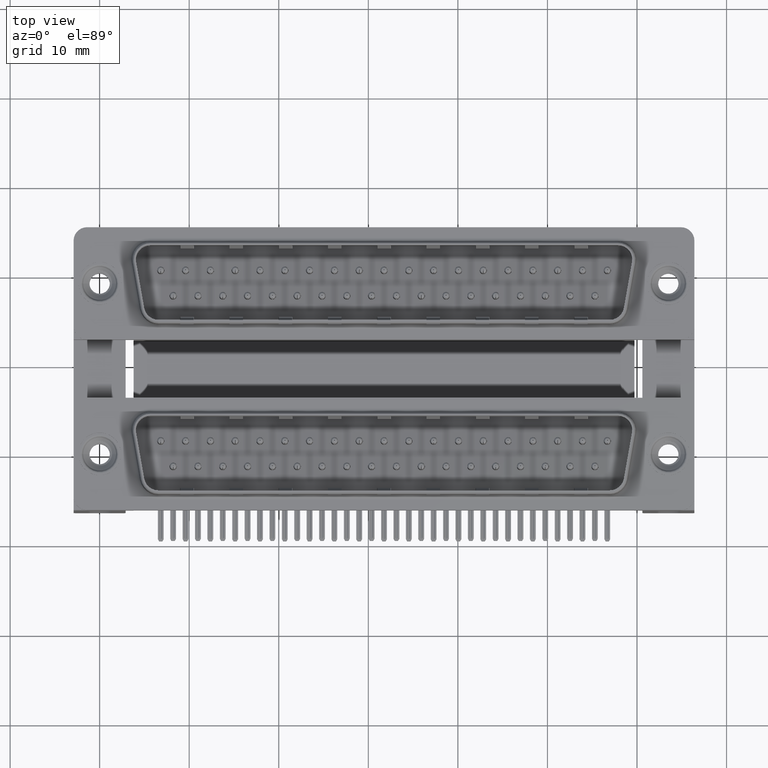
[diagram: clean part render]
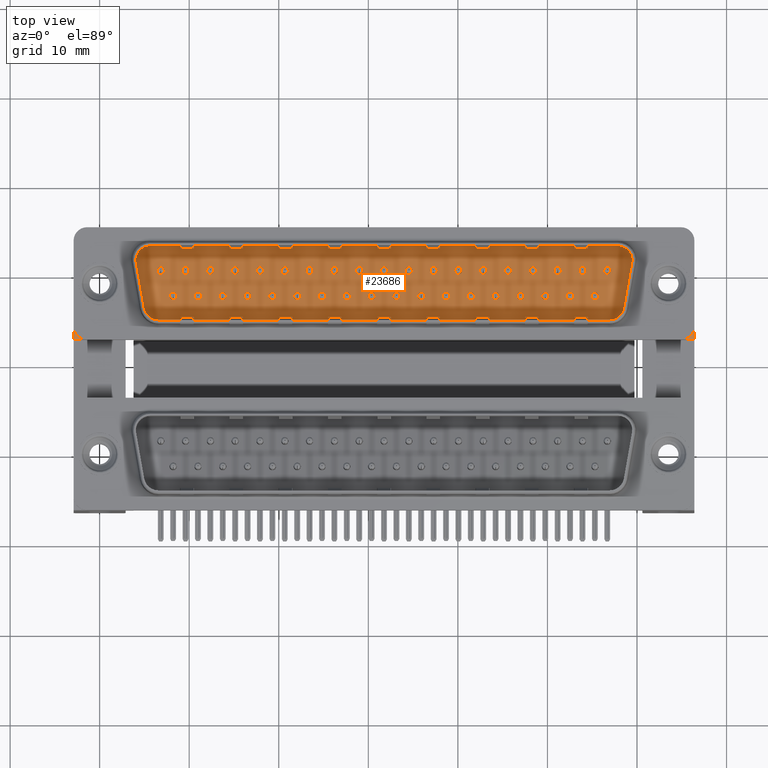
[diagram: same view with one face highlighted and labeled with its STEP entity id]
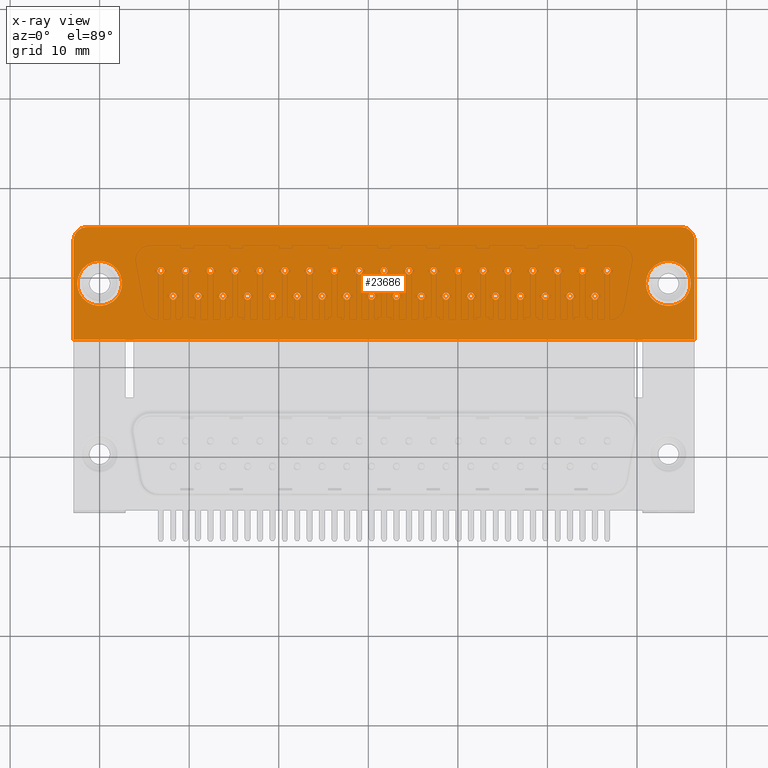
[diagram: x-ray of the same camera — body ghosted, the highlighted face saturated]
A machine part, top view. The second image highlights one B-rep face of the part: STEP entity #23686.
The next image is the same camera in x-ray: the body ghosted, the highlighted face saturated — about 0% of this face is hidden behind the body in this view.
In plain terms, the highlighted planar face has unit normal (0, 0, -1).
Its self-contained STEP definition (entity closure, byte-faithful):
#134 = AXIS2_PLACEMENT_3D ( 'NONE', #21047, #549, #17006 ) ;
#250 = CARTESIAN_POINT ( 'NONE',  ( 49.75500000000000966, 17.63000000000001322, 0.0000000000000000000 ) ) ;
#271 = AXIS2_PLACEMENT_3D ( 'NONE', #46462, #5750, #5226 ) ;
#338 = CARTESIAN_POINT ( 'NONE',  ( 34.92000000000000171, 20.47000000000000952, 0.0000000000000000000 ) ) ;
#360 = CARTESIAN_POINT ( 'NONE',  ( 66.40999999999999659, 23.82500000000000284, 0.0000000000000000000 ) ) ;
#549 = DIRECTION ( 'NONE',  ( 0.0000000000000000000, 0.0000000000000000000, 1.000000000000000000 ) ) ;
#613 = EDGE_CURVE ( 'NONE', #14466, #40310, #10594, .T. ) ;
#678 = AXIS2_PLACEMENT_3D ( 'NONE', #39449, #47268, #18968 ) ;
#901 = FACE_BOUND ( 'NONE', #22804, .T. ) ;
#932 = DIRECTION ( 'NONE',  ( 0.0000000000000000000, 0.0000000000000000000, 1.000000000000000000 ) ) ;
#1068 = AXIS2_PLACEMENT_3D ( 'NONE', #27563, #7313, #27307 ) ;
#1100 = DIRECTION ( 'NONE',  ( 0.0000000000000000000, 0.0000000000000000000, 1.000000000000000000 ) ) ;
#1288 = EDGE_CURVE ( 'NONE', #7616, #32643, #8090, .T. ) ;
#1430 = FACE_BOUND ( 'NONE', #49430, .T. ) ;
#1505 = CARTESIAN_POINT ( 'NONE',  ( 30.36500000000000199, 17.63000000000000966, 0.0000000000000000000 ) ) ;
#1554 = EDGE_LOOP ( 'NONE', ( #2146, #22816 ) ) ;
#1620 = AXIS2_PLACEMENT_3D ( 'NONE', #10225, #34541, #10755 ) ;
#1649 = AXIS2_PLACEMENT_3D ( 'NONE', #3439, #36882, #47937 ) ;
#1679 = CARTESIAN_POINT ( 'NONE',  ( 28.98000000000000398, 20.47000000000000952, 0.0000000000000000000 ) ) ;
#1724 = VERTEX_POINT ( 'NONE', #38382 ) ;
#1804 = VERTEX_POINT ( 'NONE', #47782 ) ;
#1823 = EDGE_CURVE ( 'NONE', #4097, #39753, #20190, .T. ) ;
#1957 = FACE_BOUND ( 'NONE', #24050, .T. ) ;
#1963 = CARTESIAN_POINT ( 'NONE',  ( 53.90999999999999659, 20.47000000000001307, 0.0000000000000000000 ) ) ;
#1999 = DIRECTION ( 'NONE',  ( 1.000000000000000000, 0.0000000000000000000, 0.0000000000000000000 ) ) ;
#2070 = CARTESIAN_POINT ( 'NONE',  ( 21.65500000000000824, 17.63000000000000966, 0.0000000000000000000 ) ) ;
#2099 = DIRECTION ( 'NONE',  ( 1.000000000000000000, 0.0000000000000000000, 0.0000000000000000000 ) ) ;
#2146 = ORIENTED_EDGE ( 'NONE', *, *, #38119, .F. ) ;
#2400 = CIRCLE ( 'NONE', #8423, 0.3999999999999975797 ) ;
#2552 = CARTESIAN_POINT ( 'NONE',  ( 8.205000000000003624, 17.63000000000000611, 0.0000000000000000000 ) ) ;
#2579 = CARTESIAN_POINT ( 'NONE',  ( 26.61000000000000298, 20.47000000000000952, 0.0000000000000000000 ) ) ;
#2621 = DIRECTION ( 'NONE',  ( 0.0000000000000000000, 0.0000000000000000000, 1.000000000000000000 ) ) ;
#2732 = CIRCLE ( 'NONE', #1068, 0.3999999999999975797 ) ;
#2844 = AXIS2_PLACEMENT_3D ( 'NONE', #3618, #33297, #8187 ) ;
#2863 = AXIS2_PLACEMENT_3D ( 'NONE', #2552, #18487, #43796 ) ;
#2915 = AXIS2_PLACEMENT_3D ( 'NONE', #17670, #50523, #23042 ) ;
#3078 = EDGE_CURVE ( 'NONE', #48502, #20754, #35879, .T. ) ;
#3159 = DIRECTION ( 'NONE',  ( 0.0000000000000000000, 0.0000000000000000000, 1.000000000000000000 ) ) ;
#3173 = DIRECTION ( 'NONE',  ( 0.0000000000000000000, 0.0000000000000000000, 1.000000000000000000 ) ) ;
#3264 = CARTESIAN_POINT ( 'NONE',  ( 39.07499999999999574, 17.63000000000000966, 0.0000000000000000000 ) ) ;
#3374 = CARTESIAN_POINT ( 'NONE',  ( 55.29500000000000171, 17.63000000000001322, 0.0000000000000000000 ) ) ;
#3377 = ORIENTED_EDGE ( 'NONE', *, *, #32156, .F. ) ;
#3423 = VERTEX_POINT ( 'NONE', #20720 ) ;
#3438 = EDGE_CURVE ( 'NONE', #11795, #18289, #45657, .T. ) ;
#3439 = CARTESIAN_POINT ( 'NONE',  ( 9.590000000000001634, 20.47000000000000597, 0.0000000000000000000 ) ) ;
#3458 = CIRCLE ( 'NONE', #33652, 0.3999999999999975797 ) ;
#3508 = DIRECTION ( 'NONE',  ( 1.000000000000000000, 0.0000000000000000000, 0.0000000000000000000 ) ) ;
#3618 = CARTESIAN_POINT ( 'NONE',  ( 42.82999999999999829, 20.47000000000001307, 0.0000000000000000000 ) ) ;
#3647 = CARTESIAN_POINT ( 'NONE',  ( 33.13500000000000512, 17.63000000000000966, 0.0000000000000000000 ) ) ;
#3648 = VERTEX_POINT ( 'NONE', #52187 ) ;
#3650 = AXIS2_PLACEMENT_3D ( 'NONE', #26973, #10746, #43383 ) ;
#3749 = DIRECTION ( 'NONE',  ( 1.000000000000000000, 0.0000000000000000000, 0.0000000000000000000 ) ) ;
#3768 = VERTEX_POINT ( 'NONE', #28511 ) ;
#3805 = CARTESIAN_POINT ( 'NONE',  ( 19.28500000000000369, 17.63000000000000966, 0.0000000000000000000 ) ) ;
#3847 = CARTESIAN_POINT ( 'NONE',  ( 66.40999999999999659, 12.77500000000000213, 0.0000000000000000000 ) ) ;
#3955 = ORIENTED_EDGE ( 'NONE', *, *, #32454, .F. ) ;
#3968 = CIRCLE ( 'NONE', #40136, 0.3999999999999975797 ) ;
#3991 = DIRECTION ( 'NONE',  ( 1.000000000000000000, 0.0000000000000000000, 0.0000000000000000000 ) ) ;
#4002 = EDGE_CURVE ( 'NONE', #6275, #15062, #12306, .T. ) ;
#4009 = AXIS2_PLACEMENT_3D ( 'NONE', #36071, #3159, #11508 ) ;
#4097 = VERTEX_POINT ( 'NONE', #51606 ) ;
#4144 = ORIENTED_EDGE ( 'NONE', *, *, #31614, .F. ) ;
#4174 = CIRCLE ( 'NONE', #20530, 0.3999999999999975797 ) ;
#4225 = EDGE_LOOP ( 'NONE', ( #14069, #20366 ) ) ;
#4258 = CARTESIAN_POINT ( 'NONE',  ( 42.42999999999999972, 20.47000000000001307, 0.0000000000000000000 ) ) ;
#4410 = DIRECTION ( 'NONE',  ( 1.000000000000000000, 0.0000000000000000000, 0.0000000000000000000 ) ) ;
#4565 = EDGE_LOOP ( 'NONE', ( #36945, #3955 ) ) ;
#4570 = DIRECTION ( 'NONE',  ( 0.0000000000000000000, 0.0000000000000000000, 1.000000000000000000 ) ) ;
#4781 = EDGE_LOOP ( 'NONE', ( #50120, #14502 ) ) ;
#4805 = CARTESIAN_POINT ( 'NONE',  ( 40.05999999999999517, 20.47000000000000952, 0.0000000000000000000 ) ) ;
#4823 = EDGE_CURVE ( 'NONE', #29876, #44876, #39048, .T. ) ;
#4881 = CIRCLE ( 'NONE', #7436, 0.3999999999999975797 ) ;
#4936 = DIRECTION ( 'NONE',  ( 0.0000000000000000000, 0.0000000000000000000, 1.000000000000000000 ) ) ;
#5126 = DIRECTION ( 'NONE',  ( 1.000000000000000000, 0.0000000000000000000, 0.0000000000000000000 ) ) ;
#5201 = FACE_BOUND ( 'NONE', #30887, .T. ) ;
#5207 = VERTEX_POINT ( 'NONE', #50810 ) ;
#5226 = DIRECTION ( 'NONE',  ( 1.000000000000000000, 0.0000000000000000000, 0.0000000000000000000 ) ) ;
#5236 = CARTESIAN_POINT ( 'NONE',  ( 26.21000000000000441, 20.47000000000000952, 0.0000000000000000000 ) ) ;
#5268 = CARTESIAN_POINT ( 'NONE',  ( 10.97500000000000497, 17.63000000000000611, 0.0000000000000000000 ) ) ;
#5305 = AXIS2_PLACEMENT_3D ( 'NONE', #16597, #24974, #20114 ) ;
#5313 = CARTESIAN_POINT ( 'NONE',  ( 32.14999999999999858, 20.47000000000000952, 0.0000000000000000000 ) ) ;
#5332 = CARTESIAN_POINT ( 'NONE',  ( 44.21500000000000341, 17.63000000000001322, 0.0000000000000000000 ) ) ;
#5359 = EDGE_LOOP ( 'NONE', ( #52360, #15450 ) ) ;
#5471 = FACE_BOUND ( 'NONE', #28170, .T. ) ;
#5476 = AXIS2_PLACEMENT_3D ( 'NONE', #13966, #6681, #35545 ) ;
#5602 = CARTESIAN_POINT ( 'NONE',  ( 29.37999999999999901, 20.47000000000000952, 0.0000000000000000000 ) ) ;
#5750 = DIRECTION ( 'NONE',  ( 0.0000000000000000000, 0.0000000000000000000, 1.000000000000000000 ) ) ;
#5768 = DIRECTION ( 'NONE',  ( 0.0000000000000000000, 0.0000000000000000000, 1.000000000000000000 ) ) ;
#5831 = ORIENTED_EDGE ( 'NONE', *, *, #32280, .F. ) ;
#5990 = FACE_BOUND ( 'NONE', #23143, .T. ) ;
#6065 = DIRECTION ( 'NONE',  ( 0.0000000000000000000, 0.0000000000000000000, 1.000000000000000000 ) ) ;
#6201 = CARTESIAN_POINT ( 'NONE',  ( 43.81500000000000483, 17.63000000000001322, 0.0000000000000000000 ) ) ;
#6255 = FACE_BOUND ( 'NONE', #4781, .T. ) ;
#6275 = VERTEX_POINT ( 'NONE', #11513 ) ;
#6386 = DIRECTION ( 'NONE',  ( 1.000000000000000000, 0.0000000000000000000, 0.0000000000000000000 ) ) ;
#6411 = EDGE_LOOP ( 'NONE', ( #8284, #25872 ) ) ;
#6443 = VERTEX_POINT ( 'NONE', #36870 ) ;
#6464 = VERTEX_POINT ( 'NONE', #48719 ) ;
#6511 = EDGE_CURVE ( 'NONE', #28140, #14308, #27437, .T. ) ;
#6521 = VERTEX_POINT ( 'NONE', #42234 ) ;
#6570 = CARTESIAN_POINT ( 'NONE',  ( 47.38500000000000512, 17.63000000000001322, 0.0000000000000000000 ) ) ;
#6663 = CIRCLE ( 'NONE', #678, 0.3999999999999975797 ) ;
#6672 = EDGE_LOOP ( 'NONE', ( #17483, #18708 ) ) ;
#6681 = DIRECTION ( 'NONE',  ( 0.0000000000000000000, 0.0000000000000000000, 1.000000000000000000 ) ) ;
#6747 = CIRCLE ( 'NONE', #40338, 0.3999999999999975797 ) ;
#6777 = DIRECTION ( 'NONE',  ( -1.000000000000000000, 0.0000000000000000000, 0.0000000000000000000 ) ) ;
#6863 = CARTESIAN_POINT ( 'NONE',  ( 33.13500000000000512, 17.63000000000000966, 0.0000000000000000000 ) ) ;
#7068 = DIRECTION ( 'NONE',  ( 0.0000000000000000000, 0.0000000000000000000, 1.000000000000000000 ) ) ;
#7132 = DIRECTION ( 'NONE',  ( 1.000000000000000000, 0.0000000000000000000, 0.0000000000000000000 ) ) ;
#7253 = DIRECTION ( 'NONE',  ( 1.000000000000000000, 0.0000000000000000000, 0.0000000000000000000 ) ) ;
#7313 = DIRECTION ( 'NONE',  ( 0.0000000000000000000, 0.0000000000000000000, 1.000000000000000000 ) ) ;
#7367 = CIRCLE ( 'NONE', #48698, 0.3999999999999975797 ) ;
#7436 = AXIS2_PLACEMENT_3D ( 'NONE', #5332, #38233, #42788 ) ;
#7455 = EDGE_CURVE ( 'NONE', #8329, #52521, #37162, .T. ) ;
#7489 = CARTESIAN_POINT ( 'NONE',  ( 46.58500000000000796, 17.63000000000001322, 0.0000000000000000000 ) ) ;
#7500 = EDGE_CURVE ( 'NONE', #5207, #36885, #16501, .T. ) ;
#7591 = AXIS2_PLACEMENT_3D ( 'NONE', #42669, #30318, #22198 ) ;
#7616 = VERTEX_POINT ( 'NONE', #34387 ) ;
#7633 = DIRECTION ( 'NONE',  ( 0.0000000000000000000, 0.0000000000000000000, 1.000000000000000000 ) ) ;
#7670 = CARTESIAN_POINT ( 'NONE',  ( 39.66000000000000369, 20.47000000000000952, 0.0000000000000000000 ) ) ;
#7847 = DIRECTION ( 'NONE',  ( 1.000000000000000000, 0.0000000000000000000, 0.0000000000000000000 ) ) ;
#7868 = DIRECTION ( 'NONE',  ( 0.0000000000000000000, 0.0000000000000000000, 1.000000000000000000 ) ) ;
#8001 = AXIS2_PLACEMENT_3D ( 'NONE', #29403, #53066, #33439 ) ;
#8051 = CARTESIAN_POINT ( 'NONE',  ( 52.52500000000000568, 17.63000000000001322, 0.0000000000000000000 ) ) ;
#8090 = CIRCLE ( 'NONE', #32237, 0.3999999999999975797 ) ;
#8155 = DIRECTION ( 'NONE',  ( 1.000000000000000000, 0.0000000000000000000, 0.0000000000000000000 ) ) ;
#8187 = DIRECTION ( 'NONE',  ( 1.000000000000000000, 0.0000000000000000000, 0.0000000000000000000 ) ) ;
#8284 = ORIENTED_EDGE ( 'NONE', *, *, #28391, .F. ) ;
#8298 = DIRECTION ( 'NONE',  ( 0.0000000000000000000, 0.0000000000000000000, 1.000000000000000000 ) ) ;
#8329 = VERTEX_POINT ( 'NONE', #4258 ) ;
#8423 = AXIS2_PLACEMENT_3D ( 'NONE', #25974, #45903, #21392 ) ;
#8555 = CARTESIAN_POINT ( 'NONE',  ( -2.909999999999998366, 23.82499999999999929, 0.0000000000000000000 ) ) ;
#8686 = EDGE_CURVE ( 'NONE', #13638, #17796, #28552, .T. ) ;
#8798 = EDGE_CURVE ( 'NONE', #35347, #29595, #38003, .T. ) ;
#8801 = VERTEX_POINT ( 'NONE', #39541 ) ;
#8856 = ORIENTED_EDGE ( 'NONE', *, *, #27619, .F. ) ;
#9037 = AXIS2_PLACEMENT_3D ( 'NONE', #19619, #40629, #43876 ) ;
#9048 = CARTESIAN_POINT ( 'NONE',  ( -2.909999999999997478, 12.77500000000000213, 0.0000000000000000000 ) ) ;
#9154 = CIRCLE ( 'NONE', #4009, 2.500000000000000000 ) ;
#9218 = CARTESIAN_POINT ( 'NONE',  ( 27.59500000000000597, 17.63000000000000966, 0.0000000000000000000 ) ) ;
#9231 = FACE_BOUND ( 'NONE', #29058, .T. ) ;
#9473 = EDGE_CURVE ( 'NONE', #9765, #1804, #43380, .T. ) ;
#9494 = FACE_BOUND ( 'NONE', #22542, .T. ) ;
#9509 = CARTESIAN_POINT ( 'NONE',  ( 35.50500000000000966, 17.63000000000000966, 0.0000000000000000000 ) ) ;
#9522 = DIRECTION ( 'NONE',  ( 1.000000000000000000, 0.0000000000000000000, 0.0000000000000000000 ) ) ;
#9558 = DIRECTION ( 'NONE',  ( 1.000000000000000000, 0.0000000000000000000, 0.0000000000000000000 ) ) ;
#9753 = CIRCLE ( 'NONE', #39908, 0.3999999999999975797 ) ;
#9765 = VERTEX_POINT ( 'NONE', #19654 ) ;
#9893 = ORIENTED_EDGE ( 'NONE', *, *, #14231, .F. ) ;
#9896 = VECTOR ( 'NONE', #20292, 1000.000000000000000 ) ;
#10062 = EDGE_CURVE ( 'NONE', #50198, #48913, #50307, .T. ) ;
#10225 = CARTESIAN_POINT ( 'NONE',  ( 56.67999999999999972, 20.47000000000001307, 0.0000000000000000000 ) ) ;
#10285 = FACE_BOUND ( 'NONE', #4565, .T. ) ;
#10299 = VERTEX_POINT ( 'NONE', #41604 ) ;
#10508 = CIRCLE ( 'NONE', #43228, 2.499999999999988454 ) ;
#10594 = CIRCLE ( 'NONE', #20932, 0.3999999999999975797 ) ;
#10603 = CIRCLE ( 'NONE', #2844, 0.3999999999999975797 ) ;
#10746 = DIRECTION ( 'NONE',  ( 0.0000000000000000000, 0.0000000000000000000, 1.000000000000000000 ) ) ;
#10755 = DIRECTION ( 'NONE',  ( 1.000000000000000000, 0.0000000000000000000, 0.0000000000000000000 ) ) ;
#11227 = CARTESIAN_POINT ( 'NONE',  ( 18.88500000000000512, 17.63000000000000966, 0.0000000000000000000 ) ) ;
#11233 = ORIENTED_EDGE ( 'NONE', *, *, #17528, .F. ) ;
#11247 = EDGE_CURVE ( 'NONE', #29595, #35347, #23657, .T. ) ;
#11370 = CARTESIAN_POINT ( 'NONE',  ( 23.44000000000000128, 20.47000000000000952, 0.0000000000000000000 ) ) ;
#11372 = VERTEX_POINT ( 'NONE', #44784 ) ;
#11463 = EDGE_LOOP ( 'NONE', ( #38408, #19089 ) ) ;
#11508 = DIRECTION ( 'NONE',  ( 1.000000000000000000, 0.0000000000000000000, 0.0000000000000000000 ) ) ;
#11513 = CARTESIAN_POINT ( 'NONE',  ( 7.805000000000005933, 17.63000000000000611, 0.0000000000000000000 ) ) ;
#11561 = CARTESIAN_POINT ( 'NONE',  ( 41.04500000000000171, 17.63000000000001322, 0.0000000000000000000 ) ) ;
#11622 = CARTESIAN_POINT ( 'NONE',  ( 46.98500000000000654, 17.63000000000001322, 0.0000000000000000000 ) ) ;
#11632 = CARTESIAN_POINT ( 'NONE',  ( 41.44500000000000028, 17.63000000000001322, 0.0000000000000000000 ) ) ;
#11705 = VECTOR ( 'NONE', #52054, 1000.000000000000000 ) ;
#11731 = DIRECTION ( 'NONE',  ( 0.0000000000000000000, 0.0000000000000000000, 1.000000000000000000 ) ) ;
#11770 = DIRECTION ( 'NONE',  ( 1.000000000000000000, 0.0000000000000000000, 0.0000000000000000000 ) ) ;
#11795 = VERTEX_POINT ( 'NONE', #51735 ) ;
#11813 = CARTESIAN_POINT ( 'NONE',  ( 52.52500000000000568, 17.63000000000001322, 0.0000000000000000000 ) ) ;
#11835 = CARTESIAN_POINT ( 'NONE',  ( 41.44500000000000028, 17.63000000000001322, 0.0000000000000000000 ) ) ;
#11853 = AXIS2_PLACEMENT_3D ( 'NONE', #46167, #37830, #12453 ) ;
#11855 = AXIS2_PLACEMENT_3D ( 'NONE', #24397, #16275, #4410 ) ;
#11991 = CARTESIAN_POINT ( 'NONE',  ( 9.989999999999998437, 20.47000000000000597, 0.0000000000000000000 ) ) ;
#12107 = DIRECTION ( 'NONE',  ( 0.0000000000000000000, 0.0000000000000000000, 1.000000000000000000 ) ) ;
#12151 = CARTESIAN_POINT ( 'NONE',  ( 54.30999999999999517, 20.47000000000001307, 0.0000000000000000000 ) ) ;
#12162 = ORIENTED_EDGE ( 'NONE', *, *, #37000, .F. ) ;
#12306 = CIRCLE ( 'NONE', #2863, 0.3999999999999975797 ) ;
#12320 = EDGE_CURVE ( 'NONE', #33709, #37273, #16900, .T. ) ;
#12358 = EDGE_LOOP ( 'NONE', ( #26155, #48178 ) ) ;
#12366 = CARTESIAN_POINT ( 'NONE',  ( 25.22500000000000497, 17.63000000000000966, 0.0000000000000000000 ) ) ;
#12453 = DIRECTION ( 'NONE',  ( 1.000000000000000000, 0.0000000000000000000, 0.0000000000000000000 ) ) ;
#12460 = ORIENTED_EDGE ( 'NONE', *, *, #43082, .F. ) ;
#12497 = ORIENTED_EDGE ( 'NONE', *, *, #46670, .F. ) ;
#12500 = CARTESIAN_POINT ( 'NONE',  ( 20.27000000000000313, 20.47000000000000952, 0.0000000000000000000 ) ) ;
#12567 = EDGE_CURVE ( 'NONE', #41618, #52554, #29864, .T. ) ;
#12576 = AXIS2_PLACEMENT_3D ( 'NONE', #46904, #1100, #22391 ) ;
#12731 = CARTESIAN_POINT ( 'NONE',  ( 45.60000000000000142, 20.47000000000001307, 0.0000000000000000000 ) ) ;
#12811 = EDGE_CURVE ( 'NONE', #52521, #8329, #10603, .T. ) ;
#12864 = CIRCLE ( 'NONE', #19785, 0.3999999999999975797 ) ;
#12989 = EDGE_CURVE ( 'NONE', #15062, #6275, #47637, .T. ) ;
#13170 = CARTESIAN_POINT ( 'NONE',  ( 16.11500000000001265, 17.63000000000000966, 0.0000000000000000000 ) ) ;
#13199 = EDGE_CURVE ( 'NONE', #39753, #4097, #3458, .T. ) ;
#13247 = CARTESIAN_POINT ( 'NONE',  ( 29.96500000000000696, 17.63000000000000966, 0.0000000000000000000 ) ) ;
#13280 = FACE_BOUND ( 'NONE', #49056, .T. ) ;
#13501 = AXIS2_PLACEMENT_3D ( 'NONE', #8051, #52791, #3749 ) ;
#13544 = FACE_BOUND ( 'NONE', #50733, .T. ) ;
#13638 = VERTEX_POINT ( 'NONE', #44396 ) ;
#13877 = CARTESIAN_POINT ( 'NONE',  ( 40.05999999999999517, 20.47000000000000952, 0.0000000000000000000 ) ) ;
#13966 = CARTESIAN_POINT ( 'NONE',  ( 48.37000000000000455, 20.47000000000001307, 0.0000000000000000000 ) ) ;
#14069 = ORIENTED_EDGE ( 'NONE', *, *, #27232, .F. ) ;
#14076 = FACE_BOUND ( 'NONE', #35931, .T. ) ;
#14110 = DIRECTION ( 'NONE',  ( 1.000000000000000000, 0.0000000000000000000, 0.0000000000000000000 ) ) ;
#14231 = EDGE_CURVE ( 'NONE', #44876, #29876, #42482, .T. ) ;
#14293 = EDGE_CURVE ( 'NONE', #35238, #6521, #9753, .T. ) ;
#14308 = VERTEX_POINT ( 'NONE', #31560 ) ;
#14340 = FACE_BOUND ( 'NONE', #49490, .T. ) ;
#14348 = ORIENTED_EDGE ( 'NONE', *, *, #9473, .F. ) ;
#14358 = CARTESIAN_POINT ( 'NONE',  ( 23.04000000000000625, 20.47000000000000952, 0.0000000000000000000 ) ) ;
#14463 = EDGE_CURVE ( 'NONE', #3768, #34775, #42522, .T. ) ;
#14466 = VERTEX_POINT ( 'NONE', #22777 ) ;
#14502 = ORIENTED_EDGE ( 'NONE', *, *, #4002, .F. ) ;
#14571 = ORIENTED_EDGE ( 'NONE', *, *, #8798, .F. ) ;
#14615 = DIRECTION ( 'NONE',  ( 1.000000000000000000, 0.0000000000000000000, 0.0000000000000000000 ) ) ;
#14712 = DIRECTION ( 'NONE',  ( 0.0000000000000000000, 0.0000000000000000000, 1.000000000000000000 ) ) ;
#14719 = DIRECTION ( 'NONE',  ( 1.000000000000000000, 0.0000000000000000000, 0.0000000000000000000 ) ) ;
#14737 = ORIENTED_EDGE ( 'NONE', *, *, #28623, .T. ) ;
#14748 = CIRCLE ( 'NONE', #5305, 0.3999999999999975797 ) ;
#15037 = AXIS2_PLACEMENT_3D ( 'NONE', #11632, #27063, #27327 ) ;
#15062 = VERTEX_POINT ( 'NONE', #19130 ) ;
#15077 = VERTEX_POINT ( 'NONE', #8555 ) ;
#15091 = ORIENTED_EDGE ( 'NONE', *, *, #28157, .F. ) ;
#15231 = ORIENTED_EDGE ( 'NONE', *, *, #38398, .F. ) ;
#15272 = AXIS2_PLACEMENT_3D ( 'NONE', #23874, #932, #9522 ) ;
#15296 = VERTEX_POINT ( 'NONE', #5602 ) ;
#15399 = AXIS2_PLACEMENT_3D ( 'NONE', #20830, #37281, #28418 ) ;
#15403 = VERTEX_POINT ( 'NONE', #52179 ) ;
#15409 = ORIENTED_EDGE ( 'NONE', *, *, #47449, .F. ) ;
#15443 = CIRCLE ( 'NONE', #24045, 0.3999999999999975797 ) ;
#15450 = ORIENTED_EDGE ( 'NONE', *, *, #46303, .F. ) ;
#15546 = CARTESIAN_POINT ( 'NONE',  ( 20.67000000000000171, 20.47000000000000952, 0.0000000000000000000 ) ) ;
#15560 = DIRECTION ( 'NONE',  ( 0.0000000000000000000, 0.0000000000000000000, 1.000000000000000000 ) ) ;
#15637 = EDGE_LOOP ( 'NONE', ( #14571, #31643 ) ) ;
#15664 = CARTESIAN_POINT ( 'NONE',  ( 63.50000000000000000, 19.05000000000001137, 0.0000000000000000000 ) ) ;
#15703 = ORIENTED_EDGE ( 'NONE', *, *, #48608, .F. ) ;
#16106 = AXIS2_PLACEMENT_3D ( 'NONE', #1505, #17945, #50797 ) ;
#16218 = CIRCLE ( 'NONE', #1620, 0.3999999999999975797 ) ;
#16275 = DIRECTION ( 'NONE',  ( 0.0000000000000000000, 0.0000000000000000000, 1.000000000000000000 ) ) ;
#16430 = AXIS2_PLACEMENT_3D ( 'NONE', #18213, #34678, #7132 ) ;
#16499 = ORIENTED_EDGE ( 'NONE', *, *, #18431, .F. ) ;
#16501 = CIRCLE ( 'NONE', #32008, 0.3999999999999975797 ) ;
#16529 = AXIS2_PLACEMENT_3D ( 'NONE', #47756, #39146, #6777 ) ;
#16558 = EDGE_CURVE ( 'NONE', #33431, #40800, #19845, .T. ) ;
#16563 = AXIS2_PLACEMENT_3D ( 'NONE', #50400, #17807, #34013 ) ;
#16592 = EDGE_CURVE ( 'NONE', #18100, #18257, #19884, .T. ) ;
#16597 = CARTESIAN_POINT ( 'NONE',  ( 34.52000000000000313, 20.47000000000000952, 0.0000000000000000000 ) ) ;
#16639 = AXIS2_PLACEMENT_3D ( 'NONE', #46707, #22202, #14615 ) ;
#16658 = AXIS2_PLACEMENT_3D ( 'NONE', #36117, #47428, #35590 ) ;
#16686 = CARTESIAN_POINT ( 'NONE',  ( 28.58000000000000540, 20.47000000000000952, 0.0000000000000000000 ) ) ;
#16746 = DIRECTION ( 'NONE',  ( 0.0000000000000000000, 0.0000000000000000000, 1.000000000000000000 ) ) ;
#16889 = CIRCLE ( 'NONE', #36680, 0.3999999999999975797 ) ;
#16892 = DIRECTION ( 'NONE',  ( 1.000000000000000000, 0.0000000000000000000, 0.0000000000000000000 ) ) ;
#16900 = CIRCLE ( 'NONE', #46898, 0.3999999999999975797 ) ;
#17006 = DIRECTION ( 'NONE',  ( 1.000000000000000000, 0.0000000000000000000, 0.0000000000000000000 ) ) ;
#17110 = EDGE_CURVE ( 'NONE', #48913, #50198, #25957, .T. ) ;
#17130 = AXIS2_PLACEMENT_3D ( 'NONE', #21333, #16746, #17816 ) ;
#17332 = AXIS2_PLACEMENT_3D ( 'NONE', #47358, #43580, #6386 ) ;
#17348 = FACE_BOUND ( 'NONE', #32969, .T. ) ;
#17413 = CARTESIAN_POINT ( 'NONE',  ( 52.12500000000000711, 17.63000000000001322, 0.0000000000000000000 ) ) ;
#17432 = ORIENTED_EDGE ( 'NONE', *, *, #14293, .F. ) ;
#17483 = ORIENTED_EDGE ( 'NONE', *, *, #16558, .F. ) ;
#17528 = EDGE_CURVE ( 'NONE', #28726, #36309, #14748, .T. ) ;
#17604 = VERTEX_POINT ( 'NONE', #11991 ) ;
#17607 = DIRECTION ( 'NONE',  ( 1.000000000000000000, 0.0000000000000000000, 0.0000000000000000000 ) ) ;
#17611 = FACE_BOUND ( 'NONE', #12358, .T. ) ;
#17649 = CARTESIAN_POINT ( 'NONE',  ( 24.42500000000000782, 17.63000000000000966, 0.0000000000000000000 ) ) ;
#17653 = DIRECTION ( 'NONE',  ( 0.0000000000000000000, 0.0000000000000000000, 1.000000000000000000 ) ) ;
#17670 = CARTESIAN_POINT ( 'NONE',  ( 22.05500000000000682, 17.63000000000000966, 0.0000000000000000000 ) ) ;
#17721 = EDGE_CURVE ( 'NONE', #15077, #41618, #26579, .T. ) ;
#17796 = VERTEX_POINT ( 'NONE', #43243 ) ;
#17807 = DIRECTION ( 'NONE',  ( 0.0000000000000000000, 0.0000000000000000000, 1.000000000000000000 ) ) ;
#17816 = DIRECTION ( 'NONE',  ( 1.000000000000000000, 0.0000000000000000000, 0.0000000000000000000 ) ) ;
#17876 = FACE_OUTER_BOUND ( 'NONE', #51132, .T. ) ;
#17914 = ORIENTED_EDGE ( 'NONE', *, *, #613, .F. ) ;
#17945 = DIRECTION ( 'NONE',  ( 0.0000000000000000000, 0.0000000000000000000, 1.000000000000000000 ) ) ;
#17973 = DIRECTION ( 'NONE',  ( 0.0000000000000000000, 0.0000000000000000000, 1.000000000000000000 ) ) ;
#17994 = ORIENTED_EDGE ( 'NONE', *, *, #4823, .F. ) ;
#17998 = EDGE_LOOP ( 'NONE', ( #48889, #12497 ) ) ;
#18100 = VERTEX_POINT ( 'NONE', #360 ) ;
#18115 = CARTESIAN_POINT ( 'NONE',  ( 11.37500000000000355, 17.63000000000000611, 0.0000000000000000000 ) ) ;
#18136 = FACE_BOUND ( 'NONE', #15637, .T. ) ;
#18213 = CARTESIAN_POINT ( 'NONE',  ( 24.82500000000000639, 17.63000000000000966, 0.0000000000000000000 ) ) ;
#18257 = VERTEX_POINT ( 'NONE', #21657 ) ;
#18289 = VERTEX_POINT ( 'NONE', #3264 ) ;
#18312 = EDGE_CURVE ( 'NONE', #25219, #15077, #26901, .T. ) ;
#18416 = DIRECTION ( 'NONE',  ( 0.0000000000000000000, 0.0000000000000000000, 1.000000000000000000 ) ) ;
#18431 = EDGE_CURVE ( 'NONE', #14308, #28140, #10508, .T. ) ;
#18487 = DIRECTION ( 'NONE',  ( 0.0000000000000000000, 0.0000000000000000000, 1.000000000000000000 ) ) ;
#18537 = DIRECTION ( 'NONE',  ( 0.0000000000000000000, 0.0000000000000000000, 1.000000000000000000 ) ) ;
#18554 = DIRECTION ( 'NONE',  ( 0.0000000000000000000, 0.0000000000000000000, 1.000000000000000000 ) ) ;
#18708 = ORIENTED_EDGE ( 'NONE', *, *, #27029, .F. ) ;
#18841 = ORIENTED_EDGE ( 'NONE', *, *, #33058, .F. ) ;
#18874 = CARTESIAN_POINT ( 'NONE',  ( 27.59500000000000597, 17.63000000000000966, 0.0000000000000000000 ) ) ;
#18968 = DIRECTION ( 'NONE',  ( 1.000000000000000000, 0.0000000000000000000, 0.0000000000000000000 ) ) ;
#19018 = CARTESIAN_POINT ( 'NONE',  ( 52.92499999999999716, 17.63000000000001322, 0.0000000000000000000 ) ) ;
#19084 = CARTESIAN_POINT ( 'NONE',  ( 17.90000000000000568, 20.47000000000000952, 0.0000000000000000000 ) ) ;
#19089 = ORIENTED_EDGE ( 'NONE', *, *, #37448, .F. ) ;
#19130 = CARTESIAN_POINT ( 'NONE',  ( 8.605000000000002203, 17.63000000000000611, 0.0000000000000000000 ) ) ;
#19200 = DIRECTION ( 'NONE',  ( -1.000000000000000000, 0.0000000000000000000, 0.0000000000000000000 ) ) ;
#19236 = VERTEX_POINT ( 'NONE', #32684 ) ;
#19376 = CARTESIAN_POINT ( 'NONE',  ( 14.14500000000000490, 17.63000000000000966, 0.0000000000000000000 ) ) ;
#19604 = ORIENTED_EDGE ( 'NONE', *, *, #33348, .F. ) ;
#19619 = CARTESIAN_POINT ( 'NONE',  ( 12.36000000000000298, 20.47000000000000597, 0.0000000000000000000 ) ) ;
#19623 = DIRECTION ( 'NONE',  ( 0.0000000000000000000, 0.0000000000000000000, 1.000000000000000000 ) ) ;
#19648 = CIRCLE ( 'NONE', #7591, 0.3999999999999975797 ) ;
#19654 = CARTESIAN_POINT ( 'NONE',  ( 46.00000000000000000, 20.47000000000001307, 0.0000000000000000000 ) ) ;
#19706 = DIRECTION ( 'NONE',  ( 1.000000000000000000, 0.0000000000000000000, 0.0000000000000000000 ) ) ;
#19748 = CARTESIAN_POINT ( 'NONE',  ( 25.81000000000000583, 20.47000000000000952, 0.0000000000000000000 ) ) ;
#19785 = AXIS2_PLACEMENT_3D ( 'NONE', #47136, #19623, #35294 ) ;
#19845 = CIRCLE ( 'NONE', #37092, 0.3999999999999975797 ) ;
#19884 = CIRCLE ( 'NONE', #25913, 1.500000000000001332 ) ;
#19940 = ORIENTED_EDGE ( 'NONE', *, *, #46193, .F. ) ;
#20048 = CARTESIAN_POINT ( 'NONE',  ( 64.90999999999999659, 23.82500000000000284, 0.0000000000000000000 ) ) ;
#20055 = EDGE_LOOP ( 'NONE', ( #48780, #35094 ) ) ;
#20114 = DIRECTION ( 'NONE',  ( 1.000000000000000000, 0.0000000000000000000, 0.0000000000000000000 ) ) ;
#20190 = CIRCLE ( 'NONE', #15037, 0.3999999999999975797 ) ;
#20238 = CIRCLE ( 'NONE', #32327, 0.3999999999999975797 ) ;
#20292 = DIRECTION ( 'NONE',  ( -1.000000000000000000, -5.231373570497006448E-17, -0.0000000000000000000 ) ) ;
#20366 = ORIENTED_EDGE ( 'NONE', *, *, #34702, .F. ) ;
#20367 = AXIS2_PLACEMENT_3D ( 'NONE', #22788, #39216, #9558 ) ;
#20388 = ORIENTED_EDGE ( 'NONE', *, *, #6511, .F. ) ;
#20414 = AXIS2_PLACEMENT_3D ( 'NONE', #22020, #17973, #34429 ) ;
#20530 = AXIS2_PLACEMENT_3D ( 'NONE', #26291, #5768, #1999 ) ;
#20546 = VERTEX_POINT ( 'NONE', #18115 ) ;
#20720 = CARTESIAN_POINT ( 'NONE',  ( 9.190000000000003055, 20.47000000000000597, 0.0000000000000000000 ) ) ;
#20729 = VERTEX_POINT ( 'NONE', #50842 ) ;
#20754 = VERTEX_POINT ( 'NONE', #37690 ) ;
#20788 = DIRECTION ( 'NONE',  ( 1.000000000000000000, 0.0000000000000000000, 0.0000000000000000000 ) ) ;
#20830 = CARTESIAN_POINT ( 'NONE',  ( 55.29500000000000171, 17.63000000000001322, 0.0000000000000000000 ) ) ;
#20874 = CIRCLE ( 'NONE', #27777, 2.500000000000000000 ) ;
#20932 = AXIS2_PLACEMENT_3D ( 'NONE', #3805, #32675, #20788 ) ;
#21047 = CARTESIAN_POINT ( 'NONE',  ( 23.44000000000000128, 20.47000000000000952, 0.0000000000000000000 ) ) ;
#21207 = DIRECTION ( 'NONE',  ( 0.0000000000000000000, 0.0000000000000000000, 1.000000000000000000 ) ) ;
#21333 = CARTESIAN_POINT ( 'NONE',  ( 28.98000000000000398, 20.47000000000000952, 0.0000000000000000000 ) ) ;
#21392 = DIRECTION ( 'NONE',  ( 1.000000000000000000, 0.0000000000000000000, 0.0000000000000000000 ) ) ;
#21657 = CARTESIAN_POINT ( 'NONE',  ( 64.90999999999999659, 25.32500000000000639, 0.0000000000000000000 ) ) ;
#21662 = FACE_BOUND ( 'NONE', #26068, .T. ) ;
#21697 = DIRECTION ( 'NONE',  ( 0.0000000000000000000, 0.0000000000000000000, 1.000000000000000000 ) ) ;
#22020 = CARTESIAN_POINT ( 'NONE',  ( 12.36000000000000298, 20.47000000000000597, 0.0000000000000000000 ) ) ;
#22087 = AXIS2_PLACEMENT_3D ( 'NONE', #250, #36926, #41482 ) ;
#22198 = DIRECTION ( 'NONE',  ( 1.000000000000000000, 0.0000000000000000000, 0.0000000000000000000 ) ) ;
#22202 = DIRECTION ( 'NONE',  ( 0.0000000000000000000, 0.0000000000000000000, 1.000000000000000000 ) ) ;
#22240 = VERTEX_POINT ( 'NONE', #41108 ) ;
#22391 = DIRECTION ( 'NONE',  ( 1.000000000000000000, 0.0000000000000000000, 0.0000000000000000000 ) ) ;
#22453 = FACE_BOUND ( 'NONE', #42011, .T. ) ;
#22514 = DIRECTION ( 'NONE',  ( 0.0000000000000000000, 0.0000000000000000000, 1.000000000000000000 ) ) ;
#22542 = EDGE_LOOP ( 'NONE', ( #16499, #20388 ) ) ;
#22731 = AXIS2_PLACEMENT_3D ( 'NONE', #38574, #50936, #34285 ) ;
#22777 = CARTESIAN_POINT ( 'NONE',  ( 19.68500000000000227, 17.63000000000000966, 0.0000000000000000000 ) ) ;
#22788 = CARTESIAN_POINT ( 'NONE',  ( 19.28500000000000369, 17.63000000000000966, 0.0000000000000000000 ) ) ;
#22798 = DIRECTION ( 'NONE',  ( 1.000000000000000000, 0.0000000000000000000, 0.0000000000000000000 ) ) ;
#22804 = EDGE_LOOP ( 'NONE', ( #33025, #47236 ) ) ;
#22816 = ORIENTED_EDGE ( 'NONE', *, *, #24476, .F. ) ;
#22932 = AXIS2_PLACEMENT_3D ( 'NONE', #36724, #28130, #26858 ) ;
#22977 = ORIENTED_EDGE ( 'NONE', *, *, #33250, .F. ) ;
#23042 = DIRECTION ( 'NONE',  ( 1.000000000000000000, 0.0000000000000000000, 0.0000000000000000000 ) ) ;
#23115 = AXIS2_PLACEMENT_3D ( 'NONE', #50763, #17653, #34909 ) ;
#23143 = EDGE_LOOP ( 'NONE', ( #28806, #39053 ) ) ;
#23173 = ORIENTED_EDGE ( 'NONE', *, *, #8686, .F. ) ;
#23390 = VECTOR ( 'NONE', #46502, 1000.000000000000000 ) ;
#23437 = CARTESIAN_POINT ( 'NONE',  ( 34.12000000000000455, 20.47000000000000952, 0.0000000000000000000 ) ) ;
#23518 = LINE ( 'NONE', #35124, #11705 ) ;
#23650 = AXIS2_PLACEMENT_3D ( 'NONE', #11370, #7068, #24607 ) ;
#23657 = CIRCLE ( 'NONE', #41728, 0.3999999999999975797 ) ;
#23686 = ADVANCED_FACE ( 'NONE', ( #42660, #18136, #34602, #901, #13280, #5471, #5990, #38366, #42395, #17611, #14076, #26517, #13544, #43180, #50993, #6255, #34078, #34865, #37840, #42920, #17348, #21662, #14340, #30051, #22453, #1430, #46177, #33813, #38887, #9231, #1957, #42138, #50469, #29783, #5201, #30845, #10285, #25731, #9494, #17876 ), #34341, .F. ) ;
#23694 = EDGE_CURVE ( 'NONE', #52554, #18100, #23518, .T. ) ;
#23830 = LINE ( 'NONE', #24363, #9896 ) ;
#23874 = CARTESIAN_POINT ( 'NONE',  ( 13.74500000000000810, 17.63000000000000966, 0.0000000000000000000 ) ) ;
#23926 = CIRCLE ( 'NONE', #35981, 0.3999999999999975797 ) ;
#23952 = DIRECTION ( 'NONE',  ( 1.000000000000000000, 0.0000000000000000000, 0.0000000000000000000 ) ) ;
#24045 = AXIS2_PLACEMENT_3D ( 'NONE', #30429, #30158, #14719 ) ;
#24047 = DIRECTION ( 'NONE',  ( 0.0000000000000000000, 0.0000000000000000000, 1.000000000000000000 ) ) ;
#24050 = EDGE_LOOP ( 'NONE', ( #9893, #17994 ) ) ;
#24094 = CARTESIAN_POINT ( 'NONE',  ( 43.22999999999999687, 20.47000000000001307, 0.0000000000000000000 ) ) ;
#24363 = CARTESIAN_POINT ( 'NONE',  ( -1.409999999999997700, 25.32500000000000284, 0.0000000000000000000 ) ) ;
#24397 = CARTESIAN_POINT ( 'NONE',  ( 31.75000000000000000, 20.47000000000000952, 0.0000000000000000000 ) ) ;
#24476 = EDGE_CURVE ( 'NONE', #45331, #39000, #50457, .T. ) ;
#24607 = DIRECTION ( 'NONE',  ( 1.000000000000000000, 0.0000000000000000000, 0.0000000000000000000 ) ) ;
#24829 = VERTEX_POINT ( 'NONE', #35139 ) ;
#24862 = CIRCLE ( 'NONE', #17130, 0.3999999999999975797 ) ;
#24882 = ORIENTED_EDGE ( 'NONE', *, *, #18312, .T. ) ;
#24974 = DIRECTION ( 'NONE',  ( 0.0000000000000000000, 0.0000000000000000000, 1.000000000000000000 ) ) ;
#25113 = EDGE_LOOP ( 'NONE', ( #17432, #12162 ) ) ;
#25219 = VERTEX_POINT ( 'NONE', #29457 ) ;
#25387 = ORIENTED_EDGE ( 'NONE', *, *, #34158, .F. ) ;
#25457 = CARTESIAN_POINT ( 'NONE',  ( 48.77000000000000313, 20.47000000000001307, 0.0000000000000000000 ) ) ;
#25525 = DIRECTION ( 'NONE',  ( 1.000000000000000000, 0.0000000000000000000, 0.0000000000000000000 ) ) ;
#25692 = CIRCLE ( 'NONE', #39431, 0.3999999999999975797 ) ;
#25708 = DIRECTION ( 'NONE',  ( 0.0000000000000000000, 0.0000000000000000000, 1.000000000000000000 ) ) ;
#25731 = FACE_BOUND ( 'NONE', #40260, .T. ) ;
#25872 = ORIENTED_EDGE ( 'NONE', *, *, #41561, .F. ) ;
#25913 = AXIS2_PLACEMENT_3D ( 'NONE', #20048, #32209, #50122 ) ;
#25919 = EDGE_CURVE ( 'NONE', #37337, #19236, #46160, .T. ) ;
#25926 = CARTESIAN_POINT ( 'NONE',  ( 20.67000000000000171, 20.47000000000000952, 0.0000000000000000000 ) ) ;
#25936 = VERTEX_POINT ( 'NONE', #13170 ) ;
#25957 = CIRCLE ( 'NONE', #43152, 0.3999999999999975797 ) ;
#25969 = VERTEX_POINT ( 'NONE', #41211 ) ;
#25974 = CARTESIAN_POINT ( 'NONE',  ( 51.14000000000000767, 20.47000000000001307, 0.0000000000000000000 ) ) ;
#26068 = EDGE_LOOP ( 'NONE', ( #33170, #28533 ) ) ;
#26141 = ORIENTED_EDGE ( 'NONE', *, *, #34473, .F. ) ;
#26155 = ORIENTED_EDGE ( 'NONE', *, *, #53222, .F. ) ;
#26252 = DIRECTION ( 'NONE',  ( 0.0000000000000000000, 0.0000000000000000000, 1.000000000000000000 ) ) ;
#26291 = CARTESIAN_POINT ( 'NONE',  ( 35.90500000000000824, 17.63000000000000966, 0.0000000000000000000 ) ) ;
#26294 = EDGE_CURVE ( 'NONE', #49614, #43539, #9154, .T. ) ;
#26517 = FACE_BOUND ( 'NONE', #42567, .T. ) ;
#26579 = LINE ( 'NONE', #30907, #23390 ) ;
#26611 = CARTESIAN_POINT ( 'NONE',  ( 56.28000000000000114, 20.47000000000001307, 0.0000000000000000000 ) ) ;
#26626 = EDGE_CURVE ( 'NONE', #3648, #10299, #51403, .T. ) ;
#26822 = CARTESIAN_POINT ( 'NONE',  ( 27.99500000000000099, 17.63000000000000966, 0.0000000000000000000 ) ) ;
#26858 = DIRECTION ( 'NONE',  ( 1.000000000000000000, 0.0000000000000000000, 0.0000000000000000000 ) ) ;
#26901 = CIRCLE ( 'NONE', #16529, 1.500000000000000888 ) ;
#26973 = CARTESIAN_POINT ( 'NONE',  ( 56.67999999999999972, 20.47000000000001307, 0.0000000000000000000 ) ) ;
#27029 = EDGE_CURVE ( 'NONE', #40800, #33431, #35948, .T. ) ;
#27063 = DIRECTION ( 'NONE',  ( 0.0000000000000000000, 0.0000000000000000000, 1.000000000000000000 ) ) ;
#27130 = CARTESIAN_POINT ( 'NONE',  ( 54.89500000000000313, 17.63000000000001322, 0.0000000000000000000 ) ) ;
#27143 = EDGE_LOOP ( 'NONE', ( #29335, #37687 ) ) ;
#27152 = DIRECTION ( 'NONE',  ( 1.000000000000000000, 0.0000000000000000000, 0.0000000000000000000 ) ) ;
#27232 = EDGE_CURVE ( 'NONE', #11372, #8801, #6663, .T. ) ;
#27307 = DIRECTION ( 'NONE',  ( 1.000000000000000000, 0.0000000000000000000, 0.0000000000000000000 ) ) ;
#27327 = DIRECTION ( 'NONE',  ( 1.000000000000000000, 0.0000000000000000000, 0.0000000000000000000 ) ) ;
#27353 = EDGE_CURVE ( 'NONE', #45615, #34437, #23926, .T. ) ;
#27437 = CIRCLE ( 'NONE', #37774, 2.499999999999988454 ) ;
#27563 = CARTESIAN_POINT ( 'NONE',  ( 30.36500000000000199, 17.63000000000000966, 0.0000000000000000000 ) ) ;
#27619 = EDGE_CURVE ( 'NONE', #17796, #13638, #52289, .T. ) ;
#27674 = AXIS2_PLACEMENT_3D ( 'NONE', #9218, #4936, #8155 ) ;
#27682 = ORIENTED_EDGE ( 'NONE', *, *, #33818, .F. ) ;
#27777 = AXIS2_PLACEMENT_3D ( 'NONE', #34222, #18554, #42804 ) ;
#27940 = VERTEX_POINT ( 'NONE', #5313 ) ;
#27964 = DIRECTION ( 'NONE',  ( 0.0000000000000000000, 0.0000000000000000000, 1.000000000000000000 ) ) ;
#28056 = DIRECTION ( 'NONE',  ( 1.000000000000000000, 0.0000000000000000000, 0.0000000000000000000 ) ) ;
#28130 = DIRECTION ( 'NONE',  ( 0.0000000000000000000, 0.0000000000000000000, 1.000000000000000000 ) ) ;
#28140 = VERTEX_POINT ( 'NONE', #39788 ) ;
#28143 = DIRECTION ( 'NONE',  ( 1.000000000000000000, 0.0000000000000000000, 0.0000000000000000000 ) ) ;
#28157 = EDGE_CURVE ( 'NONE', #24829, #29639, #6747, .T. ) ;
#28170 = EDGE_LOOP ( 'NONE', ( #27682, #38746 ) ) ;
#28213 = ORIENTED_EDGE ( 'NONE', *, *, #17110, .F. ) ;
#28391 = EDGE_CURVE ( 'NONE', #30654, #15403, #43767, .T. ) ;
#28418 = DIRECTION ( 'NONE',  ( 1.000000000000000000, 0.0000000000000000000, 0.0000000000000000000 ) ) ;
#28511 = CARTESIAN_POINT ( 'NONE',  ( 22.45500000000000185, 17.63000000000000966, 0.0000000000000000000 ) ) ;
#28533 = ORIENTED_EDGE ( 'NONE', *, *, #7455, .F. ) ;
#28552 = CIRCLE ( 'NONE', #31985, 0.3999999999999984679 ) ;
#28623 = EDGE_CURVE ( 'NONE', #18257, #25219, #23830, .T. ) ;
#28726 = VERTEX_POINT ( 'NONE', #338 ) ;
#28758 = EDGE_LOOP ( 'NONE', ( #46555, #3377 ) ) ;
#28796 = ORIENTED_EDGE ( 'NONE', *, *, #39978, .F. ) ;
#28806 = ORIENTED_EDGE ( 'NONE', *, *, #53245, .F. ) ;
#28818 = ORIENTED_EDGE ( 'NONE', *, *, #30225, .F. ) ;
#29058 = EDGE_LOOP ( 'NONE', ( #5831, #34338 ) ) ;
#29075 = AXIS2_PLACEMENT_3D ( 'NONE', #25926, #42337, #43120 ) ;
#29103 = AXIS2_PLACEMENT_3D ( 'NONE', #32058, #3173, #23952 ) ;
#29124 = EDGE_CURVE ( 'NONE', #22240, #40690, #16889, .T. ) ;
#29194 = EDGE_CURVE ( 'NONE', #25969, #40524, #7367, .T. ) ;
#29204 = VERTEX_POINT ( 'NONE', #12366 ) ;
#29228 = CIRCLE ( 'NONE', #15399, 0.3999999999999975797 ) ;
#29237 = DIRECTION ( 'NONE',  ( 0.0000000000000000000, 0.0000000000000000000, 1.000000000000000000 ) ) ;
#29335 = ORIENTED_EDGE ( 'NONE', *, *, #31875, .F. ) ;
#29339 = DIRECTION ( 'NONE',  ( 1.000000000000000000, 0.0000000000000000000, 0.0000000000000000000 ) ) ;
#29403 = CARTESIAN_POINT ( 'NONE',  ( 10.97500000000000497, 17.63000000000000611, 0.0000000000000000000 ) ) ;
#29431 = CARTESIAN_POINT ( 'NONE',  ( 26.21000000000000441, 20.47000000000000952, 0.0000000000000000000 ) ) ;
#29457 = CARTESIAN_POINT ( 'NONE',  ( -1.409999999999997700, 25.32500000000000284, 0.0000000000000000000 ) ) ;
#29494 = AXIS2_PLACEMENT_3D ( 'NONE', #31313, #43397, #28056 ) ;
#29507 = ORIENTED_EDGE ( 'NONE', *, *, #45875, .F. ) ;
#29595 = VERTEX_POINT ( 'NONE', #7489 ) ;
#29639 = VERTEX_POINT ( 'NONE', #27130 ) ;
#29641 = EDGE_CURVE ( 'NONE', #19236, #37337, #49595, .T. ) ;
#29690 = ORIENTED_EDGE ( 'NONE', *, *, #23694, .T. ) ;
#29783 = FACE_BOUND ( 'NONE', #51164, .T. ) ;
#29864 = LINE ( 'NONE', #9048, #35583 ) ;
#29876 = VERTEX_POINT ( 'NONE', #47226 ) ;
#30051 = FACE_BOUND ( 'NONE', #4225, .T. ) ;
#30158 = DIRECTION ( 'NONE',  ( 0.0000000000000000000, 0.0000000000000000000, 1.000000000000000000 ) ) ;
#30225 = EDGE_CURVE ( 'NONE', #20754, #48502, #4881, .T. ) ;
#30312 = DIRECTION ( 'NONE',  ( -0.0000000000000000000, 0.0000000000000000000, -1.000000000000000000 ) ) ;
#30318 = DIRECTION ( 'NONE',  ( 0.0000000000000000000, 0.0000000000000000000, 1.000000000000000000 ) ) ;
#30429 = CARTESIAN_POINT ( 'NONE',  ( 37.29000000000000625, 20.47000000000000952, 0.0000000000000000000 ) ) ;
#30654 = VERTEX_POINT ( 'NONE', #25457 ) ;
#30845 = FACE_BOUND ( 'NONE', #37288, .T. ) ;
#30887 = EDGE_LOOP ( 'NONE', ( #8856, #23173 ) ) ;
#30907 = CARTESIAN_POINT ( 'NONE',  ( -2.909999999999997478, 12.77500000000000213, 0.0000000000000000000 ) ) ;
#31313 = CARTESIAN_POINT ( 'NONE',  ( 24.82500000000000639, 17.63000000000000966, 0.0000000000000000000 ) ) ;
#31491 = DIRECTION ( 'NONE',  ( 1.000000000000000000, 0.0000000000000000000, 0.0000000000000000000 ) ) ;
#31522 = CARTESIAN_POINT ( 'NONE',  ( 35.90500000000000824, 17.63000000000000966, 0.0000000000000000000 ) ) ;
#31560 = CARTESIAN_POINT ( 'NONE',  ( 65.99999999999998579, 19.05000000000001137, 0.0000000000000000000 ) ) ;
#31614 = EDGE_CURVE ( 'NONE', #27940, #1724, #52333, .T. ) ;
#31618 = CARTESIAN_POINT ( 'NONE',  ( 21.06999999999999673, 20.47000000000000952, 0.0000000000000000000 ) ) ;
#31643 = ORIENTED_EDGE ( 'NONE', *, *, #11247, .F. ) ;
#31751 = EDGE_CURVE ( 'NONE', #3423, #17604, #19648, .T. ) ;
#31875 = EDGE_CURVE ( 'NONE', #40690, #22240, #25692, .T. ) ;
#31985 = AXIS2_PLACEMENT_3D ( 'NONE', #35257, #18537, #51916 ) ;
#32008 = AXIS2_PLACEMENT_3D ( 'NONE', #3647, #27964, #49192 ) ;
#32058 = CARTESIAN_POINT ( 'NONE',  ( 6.819999999999999396, 20.47000000000000597, 0.0000000000000000000 ) ) ;
#32126 = VERTEX_POINT ( 'NONE', #40739 ) ;
#32156 = EDGE_CURVE ( 'NONE', #39917, #15296, #24862, .T. ) ;
#32209 = DIRECTION ( 'NONE',  ( 0.0000000000000000000, 0.0000000000000000000, 1.000000000000000000 ) ) ;
#32237 = AXIS2_PLACEMENT_3D ( 'NONE', #39290, #39028, #2099 ) ;
#32280 = EDGE_CURVE ( 'NONE', #37273, #33709, #43773, .T. ) ;
#32303 = CARTESIAN_POINT ( 'NONE',  ( 40.45999999999999375, 20.47000000000000952, 0.0000000000000000000 ) ) ;
#32327 = AXIS2_PLACEMENT_3D ( 'NONE', #31522, #15560, #11770 ) ;
#32454 = EDGE_CURVE ( 'NONE', #50377, #6443, #16218, .T. ) ;
#32527 = DIRECTION ( 'NONE',  ( 1.000000000000000000, 0.0000000000000000000, 0.0000000000000000000 ) ) ;
#32610 = DIRECTION ( 'NONE',  ( 1.000000000000000000, 0.0000000000000000000, 0.0000000000000000000 ) ) ;
#32643 = VERTEX_POINT ( 'NONE', #47114 ) ;
#32675 = DIRECTION ( 'NONE',  ( 0.0000000000000000000, 0.0000000000000000000, 1.000000000000000000 ) ) ;
#32684 = CARTESIAN_POINT ( 'NONE',  ( 50.15500000000000824, 17.63000000000001322, 0.0000000000000000000 ) ) ;
#32711 = EDGE_LOOP ( 'NONE', ( #42118, #38670 ) ) ;
#32822 = CIRCLE ( 'NONE', #27674, 0.3999999999999975797 ) ;
#32969 = EDGE_LOOP ( 'NONE', ( #14348, #18841 ) ) ;
#33025 = ORIENTED_EDGE ( 'NONE', *, *, #1823, .F. ) ;
#33058 = EDGE_CURVE ( 'NONE', #1804, #9765, #49754, .T. ) ;
#33170 = ORIENTED_EDGE ( 'NONE', *, *, #12811, .F. ) ;
#33250 = EDGE_CURVE ( 'NONE', #6464, #25936, #48042, .T. ) ;
#33297 = DIRECTION ( 'NONE',  ( 0.0000000000000000000, 0.0000000000000000000, 1.000000000000000000 ) ) ;
#33348 = EDGE_CURVE ( 'NONE', #32643, #7616, #2400, .T. ) ;
#33400 = CIRCLE ( 'NONE', #47993, 0.3999999999999975797 ) ;
#33431 = VERTEX_POINT ( 'NONE', #2579 ) ;
#33439 = DIRECTION ( 'NONE',  ( 1.000000000000000000, 0.0000000000000000000, 0.0000000000000000000 ) ) ;
#33635 = CARTESIAN_POINT ( 'NONE',  ( 45.60000000000000142, 20.47000000000001307, 0.0000000000000000000 ) ) ;
#33652 = AXIS2_PLACEMENT_3D ( 'NONE', #11835, #4570, #45800 ) ;
#33709 = VERTEX_POINT ( 'NONE', #12500 ) ;
#33813 = FACE_BOUND ( 'NONE', #6672, .T. ) ;
#33818 = EDGE_CURVE ( 'NONE', #20729, #49470, #4174, .T. ) ;
#33932 = AXIS2_PLACEMENT_3D ( 'NONE', #19084, #35010, #39032 ) ;
#34013 = DIRECTION ( 'NONE',  ( 1.000000000000000000, 0.0000000000000000000, 0.0000000000000000000 ) ) ;
#34078 = FACE_BOUND ( 'NONE', #41104, .T. ) ;
#34158 = EDGE_CURVE ( 'NONE', #29639, #24829, #29228, .T. ) ;
#34222 = CARTESIAN_POINT ( 'NONE',  ( 0.0000000000000000000, 19.05000000000000071, 0.0000000000000000000 ) ) ;
#34285 = DIRECTION ( 'NONE',  ( 1.000000000000000000, 0.0000000000000000000, 0.0000000000000000000 ) ) ;
#34338 = ORIENTED_EDGE ( 'NONE', *, *, #12320, .F. ) ;
#34341 = PLANE ( 'NONE',  #52979 ) ;
#34387 = CARTESIAN_POINT ( 'NONE',  ( 50.74000000000000909, 20.47000000000001307, 0.0000000000000000000 ) ) ;
#34429 = DIRECTION ( 'NONE',  ( 1.000000000000000000, 0.0000000000000000000, 0.0000000000000000000 ) ) ;
#34437 = VERTEX_POINT ( 'NONE', #19376 ) ;
#34473 = EDGE_CURVE ( 'NONE', #17604, #3423, #39509, .T. ) ;
#34541 = DIRECTION ( 'NONE',  ( 0.0000000000000000000, 0.0000000000000000000, 1.000000000000000000 ) ) ;
#34602 = FACE_BOUND ( 'NONE', #50724, .T. ) ;
#34678 = DIRECTION ( 'NONE',  ( 0.0000000000000000000, 0.0000000000000000000, 1.000000000000000000 ) ) ;
#34702 = EDGE_CURVE ( 'NONE', #8801, #11372, #15443, .T. ) ;
#34775 = VERTEX_POINT ( 'NONE', #2070 ) ;
#34837 = VERTEX_POINT ( 'NONE', #52684 ) ;
#34865 = FACE_BOUND ( 'NONE', #27143, .T. ) ;
#34909 = DIRECTION ( 'NONE',  ( 1.000000000000000000, 0.0000000000000000000, 0.0000000000000000000 ) ) ;
#34950 = ORIENTED_EDGE ( 'NONE', *, *, #31751, .F. ) ;
#35010 = DIRECTION ( 'NONE',  ( 0.0000000000000000000, 0.0000000000000000000, 1.000000000000000000 ) ) ;
#35094 = ORIENTED_EDGE ( 'NONE', *, *, #25919, .F. ) ;
#35124 = CARTESIAN_POINT ( 'NONE',  ( 66.40999999999999659, 12.77500000000000213, 0.0000000000000000000 ) ) ;
#35139 = CARTESIAN_POINT ( 'NONE',  ( 55.69500000000000028, 17.63000000000001322, 0.0000000000000000000 ) ) ;
#35238 = VERTEX_POINT ( 'NONE', #26822 ) ;
#35257 = CARTESIAN_POINT ( 'NONE',  ( 6.819999999999999396, 20.47000000000000597, 0.0000000000000000000 ) ) ;
#35294 = DIRECTION ( 'NONE',  ( 1.000000000000000000, 0.0000000000000000000, 0.0000000000000000000 ) ) ;
#35328 = DIRECTION ( 'NONE',  ( 0.0000000000000000000, 0.0000000000000000000, 1.000000000000000000 ) ) ;
#35347 = VERTEX_POINT ( 'NONE', #6570 ) ;
#35545 = DIRECTION ( 'NONE',  ( 1.000000000000000000, 0.0000000000000000000, 0.0000000000000000000 ) ) ;
#35551 = EDGE_LOOP ( 'NONE', ( #37268, #52889 ) ) ;
#35583 = VECTOR ( 'NONE', #38447, 1000.000000000000000 ) ;
#35590 = DIRECTION ( 'NONE',  ( 1.000000000000000000, 0.0000000000000000000, 0.0000000000000000000 ) ) ;
#35646 = CARTESIAN_POINT ( 'NONE',  ( 49.35500000000001108, 17.63000000000001322, 0.0000000000000000000 ) ) ;
#35725 = EDGE_CURVE ( 'NONE', #15296, #39917, #38774, .T. ) ;
#35879 = CIRCLE ( 'NONE', #12576, 0.3999999999999975797 ) ;
#35931 = EDGE_LOOP ( 'NONE', ( #46279, #37180 ) ) ;
#35948 = CIRCLE ( 'NONE', #47959, 0.3999999999999975797 ) ;
#35981 = AXIS2_PLACEMENT_3D ( 'NONE', #36737, #7868, #28143 ) ;
#36071 = CARTESIAN_POINT ( 'NONE',  ( 0.0000000000000000000, 19.05000000000000071, 0.0000000000000000000 ) ) ;
#36117 = CARTESIAN_POINT ( 'NONE',  ( 17.90000000000000568, 20.47000000000000952, 0.0000000000000000000 ) ) ;
#36263 = AXIS2_PLACEMENT_3D ( 'NONE', #6863, #6065, #22798 ) ;
#36309 = VERTEX_POINT ( 'NONE', #23437 ) ;
#36680 = AXIS2_PLACEMENT_3D ( 'NONE', #45280, #36947, #3508 ) ;
#36724 = CARTESIAN_POINT ( 'NONE',  ( 49.75500000000000966, 17.63000000000001322, 0.0000000000000000000 ) ) ;
#36737 = CARTESIAN_POINT ( 'NONE',  ( 13.74500000000000810, 17.63000000000000966, 0.0000000000000000000 ) ) ;
#36765 = CIRCLE ( 'NONE', #13501, 0.3999999999999975797 ) ;
#36870 = CARTESIAN_POINT ( 'NONE',  ( 57.07999999999999829, 20.47000000000001307, 0.0000000000000000000 ) ) ;
#36882 = DIRECTION ( 'NONE',  ( 0.0000000000000000000, 0.0000000000000000000, 1.000000000000000000 ) ) ;
#36885 = VERTEX_POINT ( 'NONE', #45094 ) ;
#36926 = DIRECTION ( 'NONE',  ( 0.0000000000000000000, 0.0000000000000000000, 1.000000000000000000 ) ) ;
#36945 = ORIENTED_EDGE ( 'NONE', *, *, #38598, .F. ) ;
#36947 = DIRECTION ( 'NONE',  ( 0.0000000000000000000, 0.0000000000000000000, 1.000000000000000000 ) ) ;
#37000 = EDGE_CURVE ( 'NONE', #6521, #35238, #32822, .T. ) ;
#37092 = AXIS2_PLACEMENT_3D ( 'NONE', #29431, #7633, #5126 ) ;
#37162 = CIRCLE ( 'NONE', #38864, 0.3999999999999975797 ) ;
#37165 = CARTESIAN_POINT ( 'NONE',  ( 38.67500000000000426, 17.63000000000000966, 0.0000000000000000000 ) ) ;
#37180 = ORIENTED_EDGE ( 'NONE', *, *, #51398, .F. ) ;
#37202 = ORIENTED_EDGE ( 'NONE', *, *, #10062, .F. ) ;
#37268 = ORIENTED_EDGE ( 'NONE', *, *, #48974, .F. ) ;
#37273 = VERTEX_POINT ( 'NONE', #31618 ) ;
#37281 = DIRECTION ( 'NONE',  ( 0.0000000000000000000, 0.0000000000000000000, 1.000000000000000000 ) ) ;
#37288 = EDGE_LOOP ( 'NONE', ( #15091, #25387 ) ) ;
#37337 = VERTEX_POINT ( 'NONE', #35646 ) ;
#37448 = EDGE_CURVE ( 'NONE', #49376, #34837, #44032, .T. ) ;
#37687 = ORIENTED_EDGE ( 'NONE', *, *, #29124, .F. ) ;
#37690 = CARTESIAN_POINT ( 'NONE',  ( 44.61500000000000199, 17.63000000000001322, 0.0000000000000000000 ) ) ;
#37774 = AXIS2_PLACEMENT_3D ( 'NONE', #46275, #41696, #29339 ) ;
#37830 = DIRECTION ( 'NONE',  ( 0.0000000000000000000, 0.0000000000000000000, 1.000000000000000000 ) ) ;
#37840 = FACE_BOUND ( 'NONE', #42445, .T. ) ;
#38003 = CIRCLE ( 'NONE', #17332, 0.3999999999999975797 ) ;
#38119 = EDGE_CURVE ( 'NONE', #39000, #45331, #2732, .T. ) ;
#38233 = DIRECTION ( 'NONE',  ( 0.0000000000000000000, 0.0000000000000000000, 1.000000000000000000 ) ) ;
#38366 = FACE_BOUND ( 'NONE', #1554, .T. ) ;
#38382 = CARTESIAN_POINT ( 'NONE',  ( 31.35000000000000142, 20.47000000000000952, 0.0000000000000000000 ) ) ;
#38398 = EDGE_CURVE ( 'NONE', #1724, #27940, #42383, .T. ) ;
#38408 = ORIENTED_EDGE ( 'NONE', *, *, #44048, .F. ) ;
#38447 = DIRECTION ( 'NONE',  ( 1.000000000000000000, 0.0000000000000000000, 0.0000000000000000000 ) ) ;
#38465 = AXIS2_PLACEMENT_3D ( 'NONE', #5268, #22514, #47303 ) ;
#38574 = CARTESIAN_POINT ( 'NONE',  ( 16.51500000000000767, 17.63000000000000966, 0.0000000000000000000 ) ) ;
#38594 = AXIS2_PLACEMENT_3D ( 'NONE', #33635, #21207, #16892 ) ;
#38598 = EDGE_CURVE ( 'NONE', #6443, #50377, #43254, .T. ) ;
#38631 = CARTESIAN_POINT ( 'NONE',  ( 15.13000000000000433, 20.47000000000000952, 0.0000000000000000000 ) ) ;
#38670 = ORIENTED_EDGE ( 'NONE', *, *, #44727, .F. ) ;
#38746 = ORIENTED_EDGE ( 'NONE', *, *, #44830, .F. ) ;
#38774 = CIRCLE ( 'NONE', #51642, 0.3999999999999975797 ) ;
#38864 = AXIS2_PLACEMENT_3D ( 'NONE', #48408, #11731, #32527 ) ;
#38887 = FACE_BOUND ( 'NONE', #11463, .T. ) ;
#39000 = VERTEX_POINT ( 'NONE', #39754 ) ;
#39028 = DIRECTION ( 'NONE',  ( 0.0000000000000000000, 0.0000000000000000000, 1.000000000000000000 ) ) ;
#39032 = DIRECTION ( 'NONE',  ( 1.000000000000000000, 0.0000000000000000000, 0.0000000000000000000 ) ) ;
#39048 = CIRCLE ( 'NONE', #33932, 0.3999999999999975797 ) ;
#39053 = ORIENTED_EDGE ( 'NONE', *, *, #7500, .F. ) ;
#39146 = DIRECTION ( 'NONE',  ( 0.0000000000000000000, 0.0000000000000000000, 1.000000000000000000 ) ) ;
#39170 = ORIENTED_EDGE ( 'NONE', *, *, #16592, .T. ) ;
#39216 = DIRECTION ( 'NONE',  ( 0.0000000000000000000, 0.0000000000000000000, 1.000000000000000000 ) ) ;
#39290 = CARTESIAN_POINT ( 'NONE',  ( 51.14000000000000767, 20.47000000000001307, 0.0000000000000000000 ) ) ;
#39431 = AXIS2_PLACEMENT_3D ( 'NONE', #1963, #18416, #52060 ) ;
#39433 = CARTESIAN_POINT ( 'NONE',  ( -2.500000000000000000, 19.05000000000000071, 0.0000000000000000000 ) ) ;
#39449 = CARTESIAN_POINT ( 'NONE',  ( 37.29000000000000625, 20.47000000000000952, 0.0000000000000000000 ) ) ;
#39509 = CIRCLE ( 'NONE', #1649, 0.3999999999999975797 ) ;
#39541 = CARTESIAN_POINT ( 'NONE',  ( 36.89000000000000767, 20.47000000000000952, 0.0000000000000000000 ) ) ;
#39749 = EDGE_CURVE ( 'NONE', #52263, #29204, #51781, .T. ) ;
#39753 = VERTEX_POINT ( 'NONE', #11561 ) ;
#39754 = CARTESIAN_POINT ( 'NONE',  ( 30.76500000000000057, 17.63000000000000966, 0.0000000000000000000 ) ) ;
#39788 = CARTESIAN_POINT ( 'NONE',  ( 61.00000000000000711, 19.05000000000001137, 0.0000000000000000000 ) ) ;
#39826 = DIRECTION ( 'NONE',  ( 1.000000000000000000, 0.0000000000000000000, 0.0000000000000000000 ) ) ;
#39908 = AXIS2_PLACEMENT_3D ( 'NONE', #18874, #35328, #7253 ) ;
#39917 = VERTEX_POINT ( 'NONE', #16686 ) ;
#39958 = CIRCLE ( 'NONE', #22731, 0.3999999999999975797 ) ;
#39971 = AXIS2_PLACEMENT_3D ( 'NONE', #12731, #29237, #17607 ) ;
#39978 = EDGE_CURVE ( 'NONE', #43539, #49614, #20874, .T. ) ;
#39998 = CIRCLE ( 'NONE', #23650, 0.3999999999999975797 ) ;
#40136 = AXIS2_PLACEMENT_3D ( 'NONE', #40336, #51920, #31491 ) ;
#40260 = EDGE_LOOP ( 'NONE', ( #28796, #50956 ) ) ;
#40310 = VERTEX_POINT ( 'NONE', #11227 ) ;
#40336 = CARTESIAN_POINT ( 'NONE',  ( 38.67500000000000426, 17.63000000000000966, 0.0000000000000000000 ) ) ;
#40338 = AXIS2_PLACEMENT_3D ( 'NONE', #3374, #14712, #27152 ) ;
#40468 = DIRECTION ( 'NONE',  ( 1.000000000000000000, 0.0000000000000000000, 0.0000000000000000000 ) ) ;
#40524 = VERTEX_POINT ( 'NONE', #46523 ) ;
#40629 = DIRECTION ( 'NONE',  ( 0.0000000000000000000, 0.0000000000000000000, 1.000000000000000000 ) ) ;
#40690 = VERTEX_POINT ( 'NONE', #12151 ) ;
#40739 = CARTESIAN_POINT ( 'NONE',  ( 10.57500000000000817, 17.63000000000000611, 0.0000000000000000000 ) ) ;
#40761 = CIRCLE ( 'NONE', #16639, 0.3999999999999975797 ) ;
#40800 = VERTEX_POINT ( 'NONE', #19748 ) ;
#41104 = EDGE_LOOP ( 'NONE', ( #15409, #15703 ) ) ;
#41108 = CARTESIAN_POINT ( 'NONE',  ( 53.51000000000000512, 20.47000000000001307, 0.0000000000000000000 ) ) ;
#41211 = CARTESIAN_POINT ( 'NONE',  ( 15.53000000000000291, 20.47000000000000952, 0.0000000000000000000 ) ) ;
#41367 = EDGE_CURVE ( 'NONE', #20546, #32126, #50211, .T. ) ;
#41419 = CARTESIAN_POINT ( 'NONE',  ( 18.30000000000000426, 20.47000000000000952, 0.0000000000000000000 ) ) ;
#41482 = DIRECTION ( 'NONE',  ( 1.000000000000000000, 0.0000000000000000000, 0.0000000000000000000 ) ) ;
#41561 = EDGE_CURVE ( 'NONE', #15403, #30654, #51098, .T. ) ;
#41604 = CARTESIAN_POINT ( 'NONE',  ( 11.96000000000000618, 20.47000000000000597, 0.0000000000000000000 ) ) ;
#41618 = VERTEX_POINT ( 'NONE', #51682 ) ;
#41696 = DIRECTION ( 'NONE',  ( 0.0000000000000000000, 0.0000000000000000000, 1.000000000000000000 ) ) ;
#41728 = AXIS2_PLACEMENT_3D ( 'NONE', #11622, #48302, #7847 ) ;
#41959 = CIRCLE ( 'NONE', #52236, 0.3999999999999975797 ) ;
#42011 = EDGE_LOOP ( 'NONE', ( #11233, #51212 ) ) ;
#42118 = ORIENTED_EDGE ( 'NONE', *, *, #26626, .F. ) ;
#42138 = FACE_BOUND ( 'NONE', #17998, .T. ) ;
#42234 = CARTESIAN_POINT ( 'NONE',  ( 27.19500000000000739, 17.63000000000000966, 0.0000000000000000000 ) ) ;
#42337 = DIRECTION ( 'NONE',  ( 0.0000000000000000000, 0.0000000000000000000, 1.000000000000000000 ) ) ;
#42383 = CIRCLE ( 'NONE', #16563, 0.3999999999999975797 ) ;
#42395 = FACE_BOUND ( 'NONE', #25113, .T. ) ;
#42416 = ORIENTED_EDGE ( 'NONE', *, *, #12567, .T. ) ;
#42445 = EDGE_LOOP ( 'NONE', ( #19604, #50229 ) ) ;
#42482 = CIRCLE ( 'NONE', #16658, 0.3999999999999975797 ) ;
#42522 = CIRCLE ( 'NONE', #2915, 0.3999999999999975797 ) ;
#42567 = EDGE_LOOP ( 'NONE', ( #17914, #19940 ) ) ;
#42660 = FACE_BOUND ( 'NONE', #20055, .T. ) ;
#42669 = CARTESIAN_POINT ( 'NONE',  ( 9.590000000000001634, 20.47000000000000597, 0.0000000000000000000 ) ) ;
#42788 = DIRECTION ( 'NONE',  ( 1.000000000000000000, 0.0000000000000000000, 0.0000000000000000000 ) ) ;
#42804 = DIRECTION ( 'NONE',  ( 1.000000000000000000, 0.0000000000000000000, 0.0000000000000000000 ) ) ;
#42845 = EDGE_CURVE ( 'NONE', #36309, #28726, #40761, .T. ) ;
#42920 = FACE_BOUND ( 'NONE', #6411, .T. ) ;
#43082 = EDGE_CURVE ( 'NONE', #25936, #6464, #39958, .T. ) ;
#43120 = DIRECTION ( 'NONE',  ( 1.000000000000000000, 0.0000000000000000000, 0.0000000000000000000 ) ) ;
#43152 = AXIS2_PLACEMENT_3D ( 'NONE', #4805, #44958, #3991 ) ;
#43180 = FACE_BOUND ( 'NONE', #35551, .T. ) ;
#43228 = AXIS2_PLACEMENT_3D ( 'NONE', #15664, #24047, #40468 ) ;
#43243 = CARTESIAN_POINT ( 'NONE',  ( 7.219999999999997975, 20.47000000000000597, 0.0000000000000000000 ) ) ;
#43254 = CIRCLE ( 'NONE', #3650, 0.3999999999999975797 ) ;
#43380 = CIRCLE ( 'NONE', #39971, 0.3999999999999975797 ) ;
#43383 = DIRECTION ( 'NONE',  ( 1.000000000000000000, 0.0000000000000000000, 0.0000000000000000000 ) ) ;
#43397 = DIRECTION ( 'NONE',  ( 0.0000000000000000000, 0.0000000000000000000, 1.000000000000000000 ) ) ;
#43539 = VERTEX_POINT ( 'NONE', #51346 ) ;
#43580 = DIRECTION ( 'NONE',  ( 0.0000000000000000000, 0.0000000000000000000, 1.000000000000000000 ) ) ;
#43600 = CIRCLE ( 'NONE', #20367, 0.3999999999999975797 ) ;
#43767 = CIRCLE ( 'NONE', #23115, 0.3999999999999975797 ) ;
#43773 = CIRCLE ( 'NONE', #29075, 0.3999999999999975797 ) ;
#43796 = DIRECTION ( 'NONE',  ( 1.000000000000000000, 0.0000000000000000000, 0.0000000000000000000 ) ) ;
#43876 = DIRECTION ( 'NONE',  ( 1.000000000000000000, 0.0000000000000000000, 0.0000000000000000000 ) ) ;
#44032 = CIRCLE ( 'NONE', #134, 0.3999999999999975797 ) ;
#44048 = EDGE_CURVE ( 'NONE', #34837, #49376, #39998, .T. ) ;
#44396 = CARTESIAN_POINT ( 'NONE',  ( 6.420000000000000817, 20.47000000000000597, 0.0000000000000000000 ) ) ;
#44510 = CIRCLE ( 'NONE', #15272, 0.3999999999999975797 ) ;
#44705 = ORIENTED_EDGE ( 'NONE', *, *, #3438, .F. ) ;
#44727 = EDGE_CURVE ( 'NONE', #10299, #3648, #47799, .T. ) ;
#44784 = CARTESIAN_POINT ( 'NONE',  ( 37.68999999999999773, 20.47000000000000952, 0.0000000000000000000 ) ) ;
#44830 = EDGE_CURVE ( 'NONE', #49470, #20729, #20238, .T. ) ;
#44876 = VERTEX_POINT ( 'NONE', #41419 ) ;
#44958 = DIRECTION ( 'NONE',  ( 0.0000000000000000000, 0.0000000000000000000, 1.000000000000000000 ) ) ;
#45094 = CARTESIAN_POINT ( 'NONE',  ( 33.53500000000000369, 17.63000000000000966, 0.0000000000000000000 ) ) ;
#45280 = CARTESIAN_POINT ( 'NONE',  ( 53.90999999999999659, 20.47000000000001307, 0.0000000000000000000 ) ) ;
#45331 = VERTEX_POINT ( 'NONE', #13247 ) ;
#45615 = VERTEX_POINT ( 'NONE', #50340 ) ;
#45657 = CIRCLE ( 'NONE', #47376, 0.3999999999999975797 ) ;
#45709 = CIRCLE ( 'NONE', #16430, 0.3999999999999975797 ) ;
#45800 = DIRECTION ( 'NONE',  ( 1.000000000000000000, 0.0000000000000000000, 0.0000000000000000000 ) ) ;
#45875 = EDGE_CURVE ( 'NONE', #18289, #11795, #3968, .T. ) ;
#45903 = DIRECTION ( 'NONE',  ( 0.0000000000000000000, 0.0000000000000000000, 1.000000000000000000 ) ) ;
#46030 = VERTEX_POINT ( 'NONE', #17413 ) ;
#46150 = ORIENTED_EDGE ( 'NONE', *, *, #17721, .T. ) ;
#46160 = CIRCLE ( 'NONE', #22087, 0.3999999999999975797 ) ;
#46167 = CARTESIAN_POINT ( 'NONE',  ( 16.51500000000000767, 17.63000000000000966, 0.0000000000000000000 ) ) ;
#46177 = FACE_BOUND ( 'NONE', #28758, .T. ) ;
#46193 = EDGE_CURVE ( 'NONE', #40310, #14466, #43600, .T. ) ;
#46275 = CARTESIAN_POINT ( 'NONE',  ( 63.50000000000000000, 19.05000000000001137, 0.0000000000000000000 ) ) ;
#46279 = ORIENTED_EDGE ( 'NONE', *, *, #14463, .F. ) ;
#46303 = EDGE_CURVE ( 'NONE', #32126, #20546, #53039, .T. ) ;
#46462 = CARTESIAN_POINT ( 'NONE',  ( 8.205000000000003624, 17.63000000000000611, 0.0000000000000000000 ) ) ;
#46502 = DIRECTION ( 'NONE',  ( -0.0000000000000000000, -1.000000000000000000, -0.0000000000000000000 ) ) ;
#46523 = CARTESIAN_POINT ( 'NONE',  ( 14.73000000000000753, 20.47000000000000952, 0.0000000000000000000 ) ) ;
#46555 = ORIENTED_EDGE ( 'NONE', *, *, #35725, .F. ) ;
#46670 = EDGE_CURVE ( 'NONE', #40524, #25969, #41959, .T. ) ;
#46678 = DIRECTION ( 'NONE',  ( 1.000000000000000000, 0.0000000000000000000, 0.0000000000000000000 ) ) ;
#46707 = CARTESIAN_POINT ( 'NONE',  ( 34.52000000000000313, 20.47000000000000952, 0.0000000000000000000 ) ) ;
#46898 = AXIS2_PLACEMENT_3D ( 'NONE', #15546, #2621, #39826 ) ;
#46904 = CARTESIAN_POINT ( 'NONE',  ( 44.21500000000000341, 17.63000000000001322, 0.0000000000000000000 ) ) ;
#47114 = CARTESIAN_POINT ( 'NONE',  ( 51.53999999999999915, 20.47000000000001307, 0.0000000000000000000 ) ) ;
#47136 = CARTESIAN_POINT ( 'NONE',  ( 22.05500000000000682, 17.63000000000000966, 0.0000000000000000000 ) ) ;
#47226 = CARTESIAN_POINT ( 'NONE',  ( 17.50000000000000711, 20.47000000000000952, 0.0000000000000000000 ) ) ;
#47236 = ORIENTED_EDGE ( 'NONE', *, *, #13199, .F. ) ;
#47268 = DIRECTION ( 'NONE',  ( 0.0000000000000000000, 0.0000000000000000000, 1.000000000000000000 ) ) ;
#47303 = DIRECTION ( 'NONE',  ( 1.000000000000000000, 0.0000000000000000000, 0.0000000000000000000 ) ) ;
#47358 = CARTESIAN_POINT ( 'NONE',  ( 46.98500000000000654, 17.63000000000001322, 0.0000000000000000000 ) ) ;
#47376 = AXIS2_PLACEMENT_3D ( 'NONE', #37165, #49534, #50345 ) ;
#47428 = DIRECTION ( 'NONE',  ( 0.0000000000000000000, 0.0000000000000000000, 1.000000000000000000 ) ) ;
#47449 = EDGE_CURVE ( 'NONE', #49172, #46030, #33400, .T. ) ;
#47637 = CIRCLE ( 'NONE', #271, 0.3999999999999975797 ) ;
#47756 = CARTESIAN_POINT ( 'NONE',  ( -1.409999999999997700, 23.82500000000000284, 0.0000000000000000000 ) ) ;
#47782 = CARTESIAN_POINT ( 'NONE',  ( 45.20000000000000284, 20.47000000000001307, 0.0000000000000000000 ) ) ;
#47799 = CIRCLE ( 'NONE', #9037, 0.3999999999999975797 ) ;
#47937 = DIRECTION ( 'NONE',  ( 1.000000000000000000, 0.0000000000000000000, 0.0000000000000000000 ) ) ;
#47959 = AXIS2_PLACEMENT_3D ( 'NONE', #5236, #21697, #14110 ) ;
#47993 = AXIS2_PLACEMENT_3D ( 'NONE', #11813, #8298, #32610 ) ;
#48042 = CIRCLE ( 'NONE', #11853, 0.3999999999999975797 ) ;
#48178 = ORIENTED_EDGE ( 'NONE', *, *, #39749, .F. ) ;
#48302 = DIRECTION ( 'NONE',  ( 0.0000000000000000000, 0.0000000000000000000, 1.000000000000000000 ) ) ;
#48408 = CARTESIAN_POINT ( 'NONE',  ( 42.82999999999999829, 20.47000000000001307, 0.0000000000000000000 ) ) ;
#48502 = VERTEX_POINT ( 'NONE', #6201 ) ;
#48539 = CARTESIAN_POINT ( 'NONE',  ( 15.13000000000000433, 20.47000000000000952, 0.0000000000000000000 ) ) ;
#48608 = EDGE_CURVE ( 'NONE', #46030, #49172, #36765, .T. ) ;
#48698 = AXIS2_PLACEMENT_3D ( 'NONE', #48539, #12107, #19706 ) ;
#48719 = CARTESIAN_POINT ( 'NONE',  ( 16.91500000000000625, 17.63000000000000966, 0.0000000000000000000 ) ) ;
#48780 = ORIENTED_EDGE ( 'NONE', *, *, #29641, .F. ) ;
#48889 = ORIENTED_EDGE ( 'NONE', *, *, #29194, .F. ) ;
#48913 = VERTEX_POINT ( 'NONE', #7670 ) ;
#48974 = EDGE_CURVE ( 'NONE', #34437, #45615, #44510, .T. ) ;
#49056 = EDGE_LOOP ( 'NONE', ( #29507, #44705 ) ) ;
#49125 = CIRCLE ( 'NONE', #36263, 0.3999999999999975797 ) ;
#49172 = VERTEX_POINT ( 'NONE', #19018 ) ;
#49192 = DIRECTION ( 'NONE',  ( 1.000000000000000000, 0.0000000000000000000, 0.0000000000000000000 ) ) ;
#49266 = DIRECTION ( 'NONE',  ( 0.0000000000000000000, 0.0000000000000000000, 1.000000000000000000 ) ) ;
#49376 = VERTEX_POINT ( 'NONE', #14358 ) ;
#49430 = EDGE_LOOP ( 'NONE', ( #4144, #15231 ) ) ;
#49470 = VERTEX_POINT ( 'NONE', #9509 ) ;
#49490 = EDGE_LOOP ( 'NONE', ( #37202, #28213 ) ) ;
#49534 = DIRECTION ( 'NONE',  ( 0.0000000000000000000, 0.0000000000000000000, 1.000000000000000000 ) ) ;
#49595 = CIRCLE ( 'NONE', #22932, 0.3999999999999975797 ) ;
#49614 = VERTEX_POINT ( 'NONE', #39433 ) ;
#49754 = CIRCLE ( 'NONE', #38594, 0.3999999999999975797 ) ;
#50120 = ORIENTED_EDGE ( 'NONE', *, *, #12989, .F. ) ;
#50122 = DIRECTION ( 'NONE',  ( -1.000000000000000000, 0.0000000000000000000, 0.0000000000000000000 ) ) ;
#50198 = VERTEX_POINT ( 'NONE', #32303 ) ;
#50211 = CIRCLE ( 'NONE', #8001, 0.3999999999999975797 ) ;
#50229 = ORIENTED_EDGE ( 'NONE', *, *, #1288, .F. ) ;
#50307 = CIRCLE ( 'NONE', #51141, 0.3999999999999975797 ) ;
#50340 = CARTESIAN_POINT ( 'NONE',  ( 13.34500000000000952, 17.63000000000000966, 0.0000000000000000000 ) ) ;
#50345 = DIRECTION ( 'NONE',  ( 1.000000000000000000, 0.0000000000000000000, 0.0000000000000000000 ) ) ;
#50377 = VERTEX_POINT ( 'NONE', #26611 ) ;
#50400 = CARTESIAN_POINT ( 'NONE',  ( 31.75000000000000000, 20.47000000000000952, 0.0000000000000000000 ) ) ;
#50457 = CIRCLE ( 'NONE', #16106, 0.3999999999999975797 ) ;
#50469 = FACE_BOUND ( 'NONE', #32711, .T. ) ;
#50523 = DIRECTION ( 'NONE',  ( 0.0000000000000000000, 0.0000000000000000000, 1.000000000000000000 ) ) ;
#50724 = EDGE_LOOP ( 'NONE', ( #28818, #51235 ) ) ;
#50726 = CARTESIAN_POINT ( 'NONE',  ( 64.90999999999999659, 23.82500000000000284, 0.0000000000000000000 ) ) ;
#50729 = DIRECTION ( 'NONE',  ( 1.000000000000000000, 0.0000000000000000000, 0.0000000000000000000 ) ) ;
#50733 = EDGE_LOOP ( 'NONE', ( #22977, #12460 ) ) ;
#50763 = CARTESIAN_POINT ( 'NONE',  ( 48.37000000000000455, 20.47000000000001307, 0.0000000000000000000 ) ) ;
#50797 = DIRECTION ( 'NONE',  ( 1.000000000000000000, 0.0000000000000000000, 0.0000000000000000000 ) ) ;
#50810 = CARTESIAN_POINT ( 'NONE',  ( 32.73500000000000654, 17.63000000000000966, 0.0000000000000000000 ) ) ;
#50842 = CARTESIAN_POINT ( 'NONE',  ( 36.30500000000000682, 17.63000000000000966, 0.0000000000000000000 ) ) ;
#50936 = DIRECTION ( 'NONE',  ( 0.0000000000000000000, 0.0000000000000000000, 1.000000000000000000 ) ) ;
#50956 = ORIENTED_EDGE ( 'NONE', *, *, #26294, .F. ) ;
#50993 = FACE_BOUND ( 'NONE', #5359, .T. ) ;
#51098 = CIRCLE ( 'NONE', #5476, 0.3999999999999975797 ) ;
#51132 = EDGE_LOOP ( 'NONE', ( #39170, #14737, #24882, #46150, #42416, #29690 ) ) ;
#51141 = AXIS2_PLACEMENT_3D ( 'NONE', #13877, #49266, #25525 ) ;
#51164 = EDGE_LOOP ( 'NONE', ( #26141, #34950 ) ) ;
#51212 = ORIENTED_EDGE ( 'NONE', *, *, #42845, .F. ) ;
#51235 = ORIENTED_EDGE ( 'NONE', *, *, #3078, .F. ) ;
#51346 = CARTESIAN_POINT ( 'NONE',  ( 2.500000000000000000, 19.05000000000000071, 0.0000000000000000000 ) ) ;
#51398 = EDGE_CURVE ( 'NONE', #34775, #3768, #12864, .T. ) ;
#51403 = CIRCLE ( 'NONE', #20414, 0.3999999999999975797 ) ;
#51606 = CARTESIAN_POINT ( 'NONE',  ( 41.84499999999999886, 17.63000000000001322, 0.0000000000000000000 ) ) ;
#51642 = AXIS2_PLACEMENT_3D ( 'NONE', #1679, #25708, #46678 ) ;
#51682 = CARTESIAN_POINT ( 'NONE',  ( -2.909999999999997478, 12.77500000000000213, 0.0000000000000000000 ) ) ;
#51735 = CARTESIAN_POINT ( 'NONE',  ( 38.27500000000000568, 17.63000000000000966, 0.0000000000000000000 ) ) ;
#51781 = CIRCLE ( 'NONE', #29494, 0.3999999999999975797 ) ;
#51916 = DIRECTION ( 'NONE',  ( 1.000000000000000000, 0.0000000000000000000, 0.0000000000000000000 ) ) ;
#51920 = DIRECTION ( 'NONE',  ( 0.0000000000000000000, 0.0000000000000000000, 1.000000000000000000 ) ) ;
#52054 = DIRECTION ( 'NONE',  ( 0.0000000000000000000, 1.000000000000000000, 0.0000000000000000000 ) ) ;
#52060 = DIRECTION ( 'NONE',  ( 1.000000000000000000, 0.0000000000000000000, 0.0000000000000000000 ) ) ;
#52179 = CARTESIAN_POINT ( 'NONE',  ( 47.97000000000000597, 20.47000000000001307, 0.0000000000000000000 ) ) ;
#52187 = CARTESIAN_POINT ( 'NONE',  ( 12.75999999999999979, 20.47000000000000597, 0.0000000000000000000 ) ) ;
#52236 = AXIS2_PLACEMENT_3D ( 'NONE', #38631, #26252, #50729 ) ;
#52263 = VERTEX_POINT ( 'NONE', #17649 ) ;
#52289 = CIRCLE ( 'NONE', #29103, 0.3999999999999984679 ) ;
#52333 = CIRCLE ( 'NONE', #11855, 0.3999999999999975797 ) ;
#52360 = ORIENTED_EDGE ( 'NONE', *, *, #41367, .F. ) ;
#52521 = VERTEX_POINT ( 'NONE', #24094 ) ;
#52554 = VERTEX_POINT ( 'NONE', #3847 ) ;
#52684 = CARTESIAN_POINT ( 'NONE',  ( 23.83999999999999986, 20.47000000000000952, 0.0000000000000000000 ) ) ;
#52791 = DIRECTION ( 'NONE',  ( 0.0000000000000000000, 0.0000000000000000000, 1.000000000000000000 ) ) ;
#52889 = ORIENTED_EDGE ( 'NONE', *, *, #27353, .F. ) ;
#52979 = AXIS2_PLACEMENT_3D ( 'NONE', #50726, #30312, #19200 ) ;
#53039 = CIRCLE ( 'NONE', #38465, 0.3999999999999975797 ) ;
#53066 = DIRECTION ( 'NONE',  ( 0.0000000000000000000, 0.0000000000000000000, 1.000000000000000000 ) ) ;
#53222 = EDGE_CURVE ( 'NONE', #29204, #52263, #45709, .T. ) ;
#53245 = EDGE_CURVE ( 'NONE', #36885, #5207, #49125, .T. ) ;